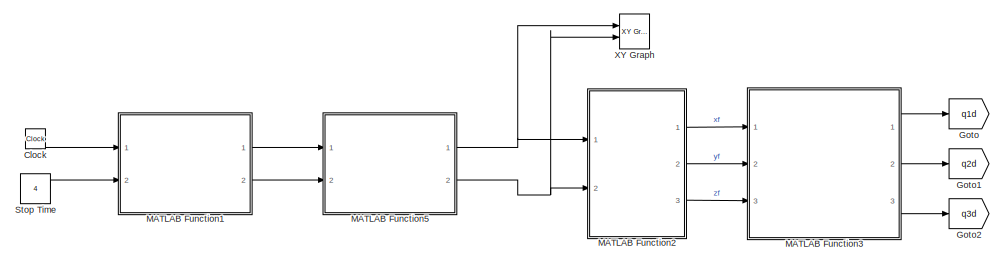
[diagram: root canvas - part 1/2, top left region]
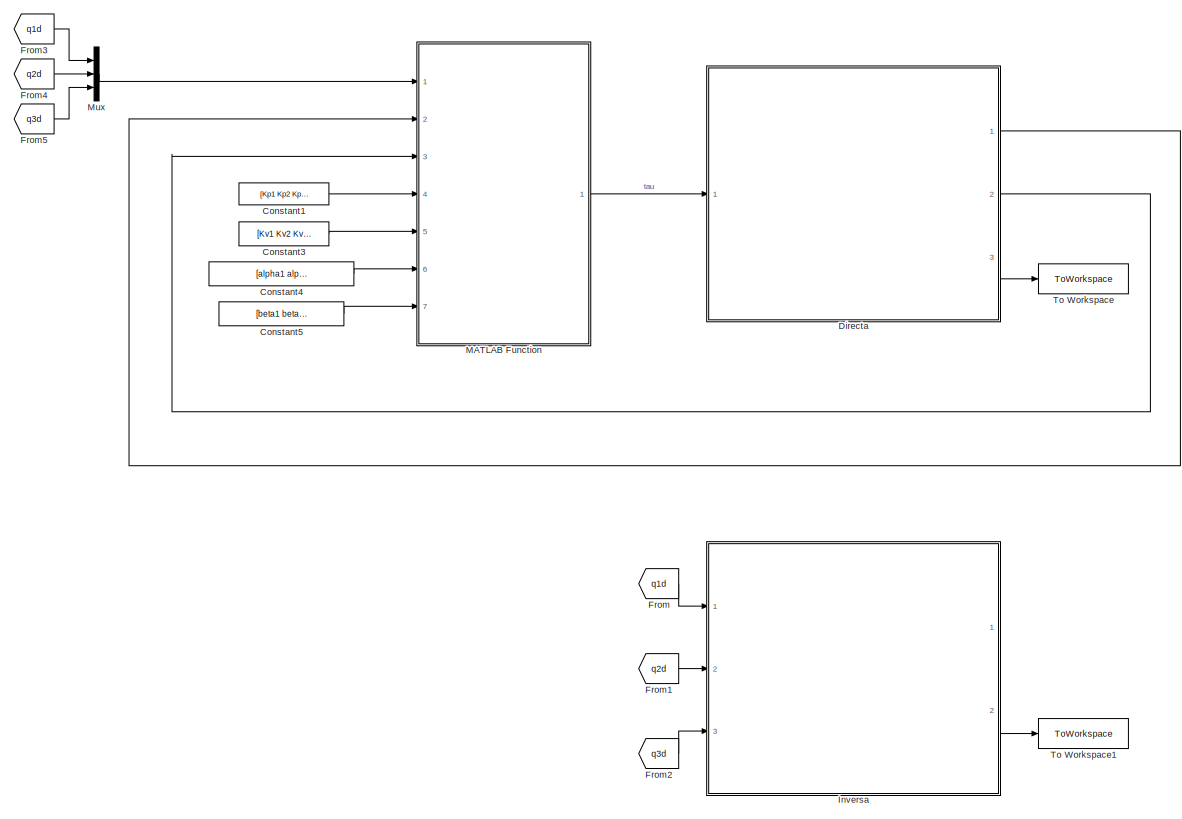
[diagram: root canvas - part 2/2, right side, full height]
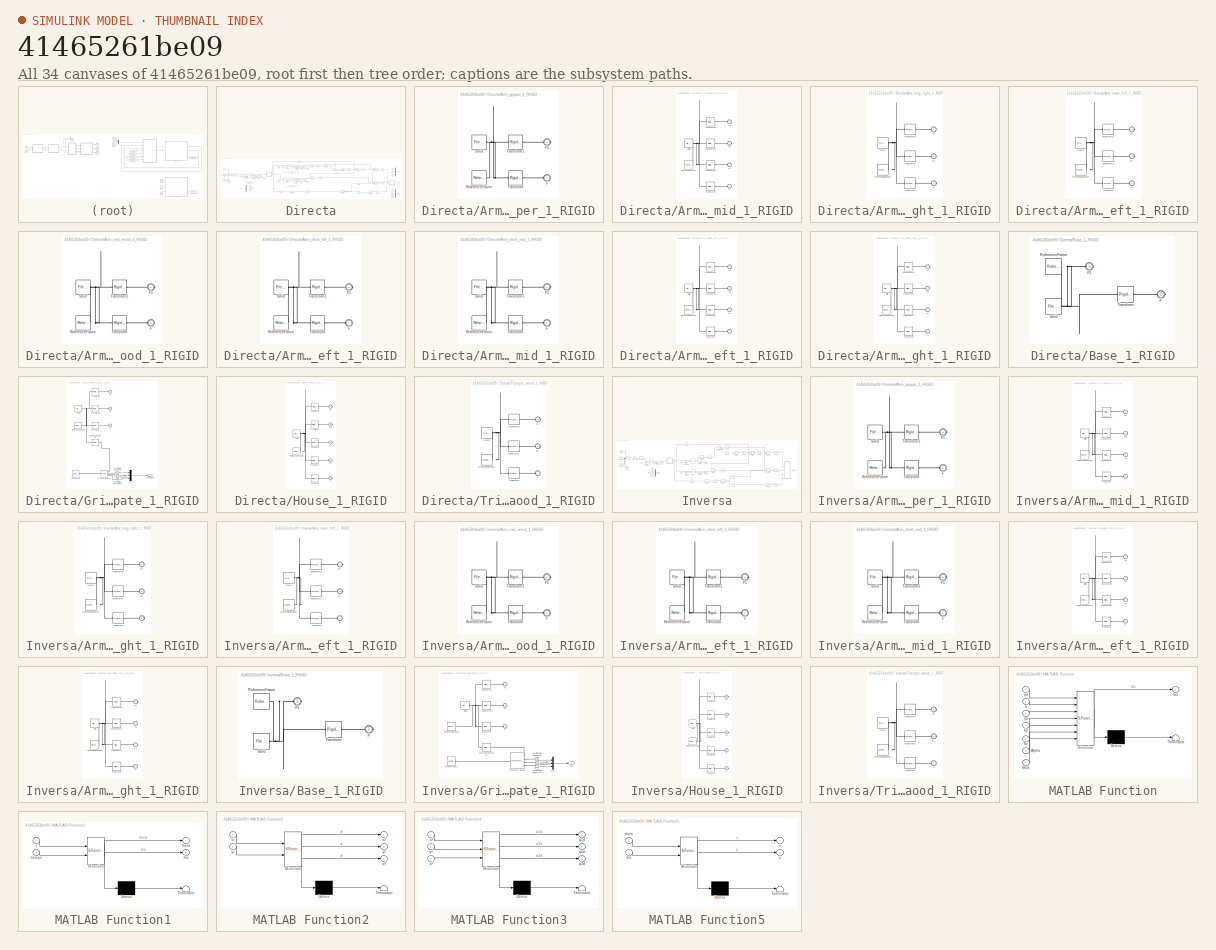
[diagram: thumbnail index - all 34 canvases of the model, root first then tree order]
MODEL slx_41465261be09
KIND model
CONFIG AbsTol = auto
CONFIG EnableMultiTasking = off
CONFIG FixedStep = auto
CONFIG MaxStep = 1e-3
CONFIG MinStep = auto
CONFIG RelTol = 1e-3
CONFIG SampleTimeConstraint = Unconstrained
CONFIG Solver = VariableStepAuto
CONFIG SolverName = VariableStepAuto
CONFIG StartTime = 0.0
CONFIG StopTime = 4
WORKSPACE source: external: MATLAB File  (data not in archive)
BLOCK [Clock] Clock
BLOCK [Constant] Constant1
  Commented = on
  Value = [Kp1 Kp2 Kp3]
BLOCK [Constant] Constant3
  Commented = on
  Value = [Kv1 Kv2 Kv3]
BLOCK [Constant] Constant4
  Commented = on
  Value = [alpha1 alpha2 alpha3]
BLOCK [Constant] Constant5
  Commented = on
  Value = [beta1 beta2 beta3]
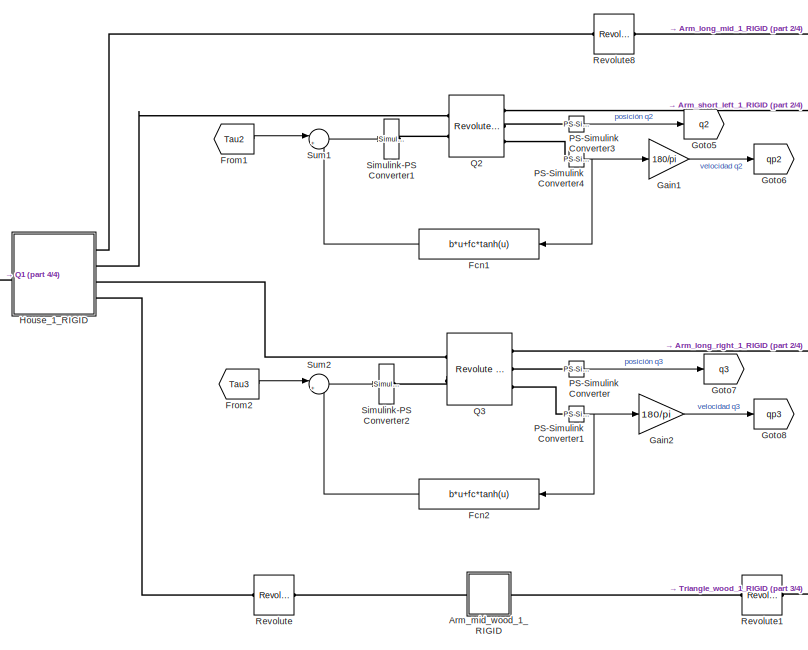
[diagram: Directa - part 1/4, center side, full height]
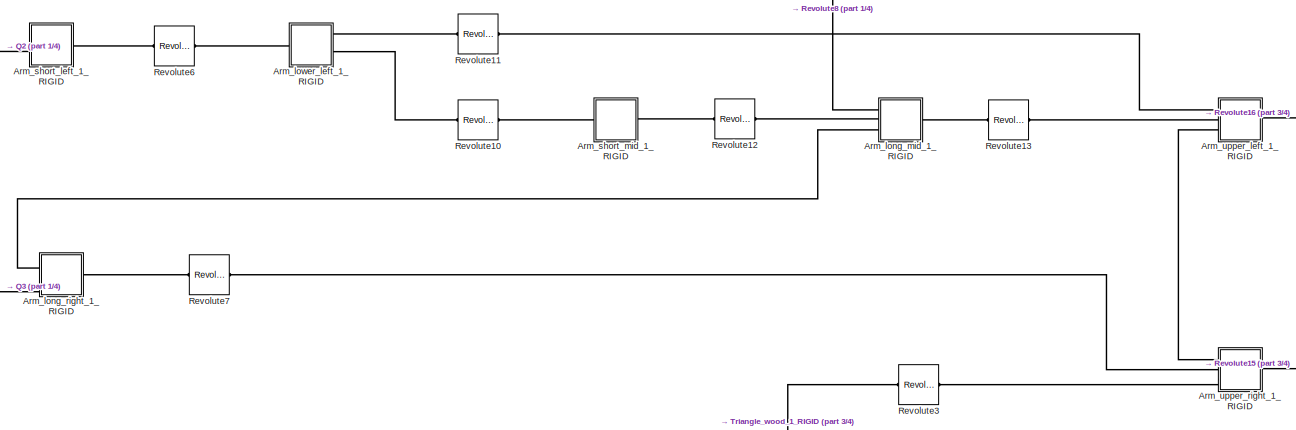
[diagram: Directa - part 2/4, middle right region]
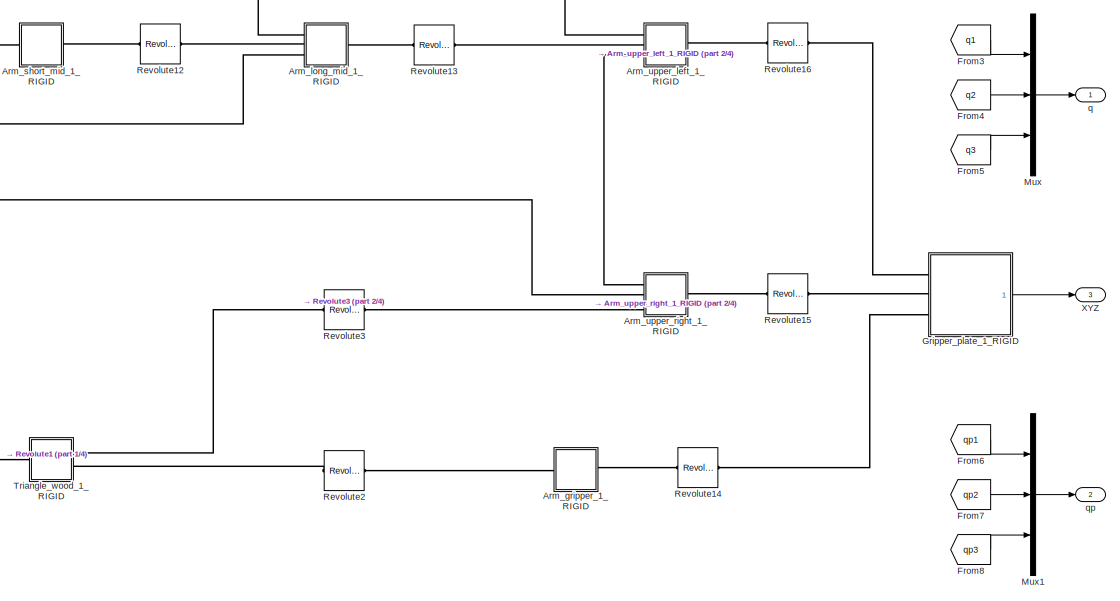
[diagram: Directa - part 3/4, right side, full height]
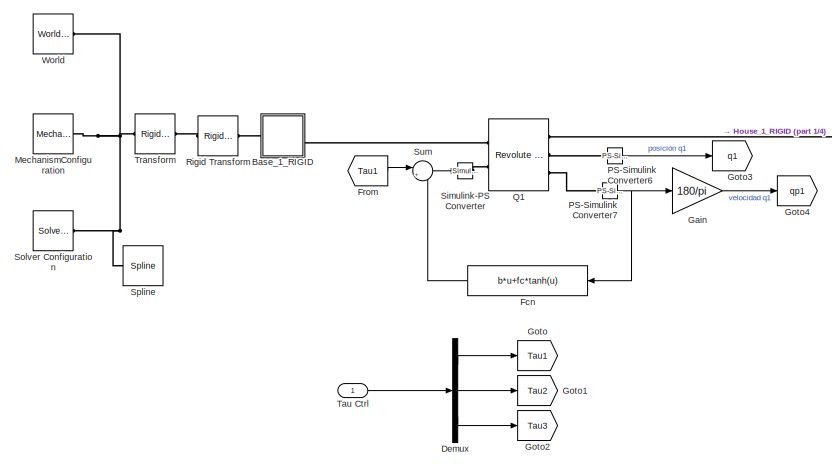
[diagram: Directa - part 4/4, middle left region]
BLOCK [SubSystem] Directa
  Commented = on
  Ports = [1, 3]
  RequestExecContextInheritance = off
BLOCK [SubSystem] Directa/Arm_gripper_1_RIGID
  Ports = [0, 0, 0, 0, 0, 1, 1]
  RequestExecContextInheritance = off
BLOCK [PMIOPort] Directa/Arm_gripper_1_RIGID/F
  Side = Left
BLOCK [PMIOPort] Directa/Arm_gripper_1_RIGID/F1
  Port = 2
  Side = Right
BLOCK [Reference] Directa/Arm_gripper_1_RIGID/ReferenceFrame  REF=sm_lib/Frames and
Transforms/Reference
Frame
  Ports = [0, 0, 0, 0, 0, 0, 1]
  SourceBlock = sm_lib/Frames and\nTransforms/Reference\nFrame
  SourceProductBaseCode = MS
  SourceProductName = Simscape Multibody
  SourceType = Reference\nFrame
BLOCK [Reference] Directa/Arm_gripper_1_RIGID/Solid  REF=sm_lib/Body Elements/File Solid
  Ports = [0, 0, 0, 0, 0, 0, 1]
  SourceBlock = sm_lib/Body Elements/File Solid
  SourceProductBaseCode = MS
  SourceProductName = Simscape Multibody
  SourceType = File Solid
BLOCK [Reference] Directa/Arm_gripper_1_RIGID/Transform  REF=sm_lib/Frames and
Transforms/Rigid
Transform
  Ports = [0, 0, 0, 0, 0, 1, 1]
  SourceBlock = sm_lib/Frames and\nTransforms/Rigid\nTransform
  SourceProductBaseCode = MS
  SourceProductName = Simscape Multibody
  SourceType = Rigid\nTransform
BLOCK [Reference] Directa/Arm_gripper_1_RIGID/Transform1  REF=sm_lib/Frames and
Transforms/Rigid
Transform
  Ports = [0, 0, 0, 0, 0, 1, 1]
  SourceBlock = sm_lib/Frames and\nTransforms/Rigid\nTransform
  SourceProductBaseCode = MS
  SourceProductName = Simscape Multibody
  SourceType = Rigid\nTransform
BLOCK [SubSystem] Directa/Arm_long_mid_1_RIGID
  Ports = [0, 0, 0, 0, 0, 3, 1]
  RequestExecContextInheritance = off
BLOCK [PMIOPort] Directa/Arm_long_mid_1_RIGID/F
  Side = Left
BLOCK [PMIOPort] Directa/Arm_long_mid_1_RIGID/F1
  Port = 2
  Side = Left
BLOCK [PMIOPort] Directa/Arm_long_mid_1_RIGID/F2
  Port = 4
  Side = Right
BLOCK [PMIOPort] Directa/Arm_long_mid_1_RIGID/F3
  Port = 3
  Side = Left
BLOCK [Reference] Directa/Arm_long_mid_1_RIGID/ReferenceFrame  REF=sm_lib/Frames and
Transforms/Reference
Frame
  Ports = [0, 0, 0, 0, 0, 0, 1]
  SourceBlock = sm_lib/Frames and\nTransforms/Reference\nFrame
  SourceProductBaseCode = MS
  SourceProductName = Simscape Multibody
  SourceType = Reference\nFrame
BLOCK [Reference] Directa/Arm_long_mid_1_RIGID/Solid  REF=sm_lib/Body Elements/File Solid
  Ports = [0, 0, 0, 0, 0, 0, 1]
  SourceBlock = sm_lib/Body Elements/File Solid
  SourceProductBaseCode = MS
  SourceProductName = Simscape Multibody
  SourceType = File Solid
BLOCK [Reference] Directa/Arm_long_mid_1_RIGID/Transform  REF=sm_lib/Frames and
Transforms/Rigid
Transform
  Ports = [0, 0, 0, 0, 0, 1, 1]
  SourceBlock = sm_lib/Frames and\nTransforms/Rigid\nTransform
  SourceProductBaseCode = MS
  SourceProductName = Simscape Multibody
  SourceType = Rigid\nTransform
BLOCK [Reference] Directa/Arm_long_mid_1_RIGID/Transform1  REF=sm_lib/Frames and
Transforms/Rigid
Transform
  Ports = [0, 0, 0, 0, 0, 1, 1]
  SourceBlock = sm_lib/Frames and\nTransforms/Rigid\nTransform
  SourceProductBaseCode = MS
  SourceProductName = Simscape Multibody
  SourceType = Rigid\nTransform
BLOCK [Reference] Directa/Arm_long_mid_1_RIGID/Transform2  REF=sm_lib/Frames and
Transforms/Rigid
Transform
  Ports = [0, 0, 0, 0, 0, 1, 1]
  SourceBlock = sm_lib/Frames and\nTransforms/Rigid\nTransform
  SourceProductBaseCode = MS
  SourceProductName = Simscape Multibody
  SourceType = Rigid\nTransform
BLOCK [Reference] Directa/Arm_long_mid_1_RIGID/Transform3  REF=sm_lib/Frames and
Transforms/Rigid
Transform
  Ports = [0, 0, 0, 0, 0, 1, 1]
  SourceBlock = sm_lib/Frames and\nTransforms/Rigid\nTransform
  SourceProductBaseCode = MS
  SourceProductName = Simscape Multibody
  SourceType = Rigid\nTransform
BLOCK [SubSystem] Directa/Arm_long_right_1_RIGID
  Ports = [0, 0, 0, 0, 0, 2, 1]
  RequestExecContextInheritance = off
BLOCK [PMIOPort] Directa/Arm_long_right_1_RIGID/F
  Port = 3
  Side = Right
BLOCK [PMIOPort] Directa/Arm_long_right_1_RIGID/F1
  Port = 2
  Side = Left
BLOCK [PMIOPort] Directa/Arm_long_right_1_RIGID/F2
  Side = Left
BLOCK [Reference] Directa/Arm_long_right_1_RIGID/ReferenceFrame  REF=sm_lib/Frames and
Transforms/Reference
Frame
  Ports = [0, 0, 0, 0, 0, 0, 1]
  SourceBlock = sm_lib/Frames and\nTransforms/Reference\nFrame
  SourceProductBaseCode = MS
  SourceProductName = Simscape Multibody
  SourceType = Reference\nFrame
BLOCK [Reference] Directa/Arm_long_right_1_RIGID/Solid  REF=sm_lib/Body Elements/File Solid
  Ports = [0, 0, 0, 0, 0, 0, 1]
  SourceBlock = sm_lib/Body Elements/File Solid
  SourceProductBaseCode = MS
  SourceProductName = Simscape Multibody
  SourceType = File Solid
BLOCK [Reference] Directa/Arm_long_right_1_RIGID/Transform  REF=sm_lib/Frames and
Transforms/Rigid
Transform
  Ports = [0, 0, 0, 0, 0, 1, 1]
  SourceBlock = sm_lib/Frames and\nTransforms/Rigid\nTransform
  SourceProductBaseCode = MS
  SourceProductName = Simscape Multibody
  SourceType = Rigid\nTransform
BLOCK [Reference] Directa/Arm_long_right_1_RIGID/Transform1  REF=sm_lib/Frames and
Transforms/Rigid
Transform
  Ports = [0, 0, 0, 0, 0, 1, 1]
  SourceBlock = sm_lib/Frames and\nTransforms/Rigid\nTransform
  SourceProductBaseCode = MS
  SourceProductName = Simscape Multibody
  SourceType = Rigid\nTransform
BLOCK [Reference] Directa/Arm_long_right_1_RIGID/Transform2  REF=sm_lib/Frames and
Transforms/Rigid
Transform
  Ports = [0, 0, 0, 0, 0, 1, 1]
  SourceBlock = sm_lib/Frames and\nTransforms/Rigid\nTransform
  SourceProductBaseCode = MS
  SourceProductName = Simscape Multibody
  SourceType = Rigid\nTransform
BLOCK [SubSystem] Directa/Arm_lower_left_1_RIGID
  Ports = [0, 0, 0, 0, 0, 1, 2]
  RequestExecContextInheritance = off
BLOCK [PMIOPort] Directa/Arm_lower_left_1_RIGID/F
  Side = Left
BLOCK [PMIOPort] Directa/Arm_lower_left_1_RIGID/F1
  Port = 3
  Side = Right
BLOCK [PMIOPort] Directa/Arm_lower_left_1_RIGID/F2
  Port = 2
  Side = Right
BLOCK [Reference] Directa/Arm_lower_left_1_RIGID/ReferenceFrame  REF=sm_lib/Frames and
Transforms/Reference
Frame
  Ports = [0, 0, 0, 0, 0, 0, 1]
  SourceBlock = sm_lib/Frames and\nTransforms/Reference\nFrame
  SourceProductBaseCode = MS
  SourceProductName = Simscape Multibody
  SourceType = Reference\nFrame
BLOCK [Reference] Directa/Arm_lower_left_1_RIGID/Solid  REF=sm_lib/Body Elements/File Solid
  Ports = [0, 0, 0, 0, 0, 0, 1]
  SourceBlock = sm_lib/Body Elements/File Solid
  SourceProductBaseCode = MS
  SourceProductName = Simscape Multibody
  SourceType = File Solid
BLOCK [Reference] Directa/Arm_lower_left_1_RIGID/Transform  REF=sm_lib/Frames and
Transforms/Rigid
Transform
  Ports = [0, 0, 0, 0, 0, 1, 1]
  SourceBlock = sm_lib/Frames and\nTransforms/Rigid\nTransform
  SourceProductBaseCode = MS
  SourceProductName = Simscape Multibody
  SourceType = Rigid\nTransform
BLOCK [Reference] Directa/Arm_lower_left_1_RIGID/Transform1  REF=sm_lib/Frames and
Transforms/Rigid
Transform
  Ports = [0, 0, 0, 0, 0, 1, 1]
  SourceBlock = sm_lib/Frames and\nTransforms/Rigid\nTransform
  SourceProductBaseCode = MS
  SourceProductName = Simscape Multibody
  SourceType = Rigid\nTransform
BLOCK [Reference] Directa/Arm_lower_left_1_RIGID/Transform2  REF=sm_lib/Frames and
Transforms/Rigid
Transform
  Ports = [0, 0, 0, 0, 0, 1, 1]
  SourceBlock = sm_lib/Frames and\nTransforms/Rigid\nTransform
  SourceProductBaseCode = MS
  SourceProductName = Simscape Multibody
  SourceType = Rigid\nTransform
BLOCK [SubSystem] Directa/Arm_mid_wood_1_RIGID
  Ports = [0, 0, 0, 0, 0, 1, 1]
  RequestExecContextInheritance = off
BLOCK [PMIOPort] Directa/Arm_mid_wood_1_RIGID/F
  Side = Left
BLOCK [PMIOPort] Directa/Arm_mid_wood_1_RIGID/F1
  Port = 2
  Side = Right
BLOCK [Reference] Directa/Arm_mid_wood_1_RIGID/ReferenceFrame  REF=sm_lib/Frames and
Transforms/Reference
Frame
  Ports = [0, 0, 0, 0, 0, 0, 1]
  SourceBlock = sm_lib/Frames and\nTransforms/Reference\nFrame
  SourceProductBaseCode = MS
  SourceProductName = Simscape Multibody
  SourceType = Reference\nFrame
BLOCK [Reference] Directa/Arm_mid_wood_1_RIGID/Solid  REF=sm_lib/Body Elements/File Solid
  Ports = [0, 0, 0, 0, 0, 0, 1]
  SourceBlock = sm_lib/Body Elements/File Solid
  SourceProductBaseCode = MS
  SourceProductName = Simscape Multibody
  SourceType = File Solid
BLOCK [Reference] Directa/Arm_mid_wood_1_RIGID/Transform  REF=sm_lib/Frames and
Transforms/Rigid
Transform
  Ports = [0, 0, 0, 0, 0, 1, 1]
  SourceBlock = sm_lib/Frames and\nTransforms/Rigid\nTransform
  SourceProductBaseCode = MS
  SourceProductName = Simscape Multibody
  SourceType = Rigid\nTransform
BLOCK [Reference] Directa/Arm_mid_wood_1_RIGID/Transform1  REF=sm_lib/Frames and
Transforms/Rigid
Transform
  Ports = [0, 0, 0, 0, 0, 1, 1]
  SourceBlock = sm_lib/Frames and\nTransforms/Rigid\nTransform
  SourceProductBaseCode = MS
  SourceProductName = Simscape Multibody
  SourceType = Rigid\nTransform
BLOCK [SubSystem] Directa/Arm_short_left_1_RIGID
  Ports = [0, 0, 0, 0, 0, 1, 1]
  RequestExecContextInheritance = off
BLOCK [PMIOPort] Directa/Arm_short_left_1_RIGID/F
  Side = Left
BLOCK [PMIOPort] Directa/Arm_short_left_1_RIGID/F1
  Port = 2
  Side = Right
BLOCK [Reference] Directa/Arm_short_left_1_RIGID/ReferenceFrame  REF=sm_lib/Frames and
Transforms/Reference
Frame
  Ports = [0, 0, 0, 0, 0, 0, 1]
  SourceBlock = sm_lib/Frames and\nTransforms/Reference\nFrame
  SourceProductBaseCode = MS
  SourceProductName = Simscape Multibody
  SourceType = Reference\nFrame
BLOCK [Reference] Directa/Arm_short_left_1_RIGID/Solid  REF=sm_lib/Body Elements/File Solid
  Ports = [0, 0, 0, 0, 0, 0, 1]
  SourceBlock = sm_lib/Body Elements/File Solid
  SourceProductBaseCode = MS
  SourceProductName = Simscape Multibody
  SourceType = File Solid
BLOCK [Reference] Directa/Arm_short_left_1_RIGID/Transform  REF=sm_lib/Frames and
Transforms/Rigid
Transform
  Ports = [0, 0, 0, 0, 0, 1, 1]
  SourceBlock = sm_lib/Frames and\nTransforms/Rigid\nTransform
  SourceProductBaseCode = MS
  SourceProductName = Simscape Multibody
  SourceType = Rigid\nTransform
BLOCK [Reference] Directa/Arm_short_left_1_RIGID/Transform1  REF=sm_lib/Frames and
Transforms/Rigid
Transform
  Ports = [0, 0, 0, 0, 0, 1, 1]
  SourceBlock = sm_lib/Frames and\nTransforms/Rigid\nTransform
  SourceProductBaseCode = MS
  SourceProductName = Simscape Multibody
  SourceType = Rigid\nTransform
BLOCK [SubSystem] Directa/Arm_short_mid_1_RIGID
  Ports = [0, 0, 0, 0, 0, 1, 1]
  RequestExecContextInheritance = off
BLOCK [PMIOPort] Directa/Arm_short_mid_1_RIGID/F
  Side = Left
BLOCK [PMIOPort] Directa/Arm_short_mid_1_RIGID/F1
  Port = 2
  Side = Right
BLOCK [Reference] Directa/Arm_short_mid_1_RIGID/ReferenceFrame  REF=sm_lib/Frames and
Transforms/Reference
Frame
  Ports = [0, 0, 0, 0, 0, 0, 1]
  SourceBlock = sm_lib/Frames and\nTransforms/Reference\nFrame
  SourceProductBaseCode = MS
  SourceProductName = Simscape Multibody
  SourceType = Reference\nFrame
BLOCK [Reference] Directa/Arm_short_mid_1_RIGID/Solid  REF=sm_lib/Body Elements/File Solid
  Ports = [0, 0, 0, 0, 0, 0, 1]
  SourceBlock = sm_lib/Body Elements/File Solid
  SourceProductBaseCode = MS
  SourceProductName = Simscape Multibody
  SourceType = File Solid
BLOCK [Reference] Directa/Arm_short_mid_1_RIGID/Transform  REF=sm_lib/Frames and
Transforms/Rigid
Transform
  Ports = [0, 0, 0, 0, 0, 1, 1]
  SourceBlock = sm_lib/Frames and\nTransforms/Rigid\nTransform
  SourceProductBaseCode = MS
  SourceProductName = Simscape Multibody
  SourceType = Rigid\nTransform
BLOCK [Reference] Directa/Arm_short_mid_1_RIGID/Transform1  REF=sm_lib/Frames and
Transforms/Rigid
Transform
  Ports = [0, 0, 0, 0, 0, 1, 1]
  SourceBlock = sm_lib/Frames and\nTransforms/Rigid\nTransform
  SourceProductBaseCode = MS
  SourceProductName = Simscape Multibody
  SourceType = Rigid\nTransform
BLOCK [SubSystem] Directa/Arm_upper_left_1_RIGID
  Ports = [0, 0, 0, 0, 0, 3, 1]
  RequestExecContextInheritance = off
BLOCK [PMIOPort] Directa/Arm_upper_left_1_RIGID/F
  Port = 3
  Side = Left
BLOCK [PMIOPort] Directa/Arm_upper_left_1_RIGID/F1
  Side = Left
BLOCK [PMIOPort] Directa/Arm_upper_left_1_RIGID/F2
  Port = 2
  Side = Left
BLOCK [PMIOPort] Directa/Arm_upper_left_1_RIGID/F3
  Port = 4
  Side = Right
BLOCK [Reference] Directa/Arm_upper_left_1_RIGID/ReferenceFrame  REF=sm_lib/Frames and
Transforms/Reference
Frame
  Ports = [0, 0, 0, 0, 0, 0, 1]
  SourceBlock = sm_lib/Frames and\nTransforms/Reference\nFrame
  SourceProductBaseCode = MS
  SourceProductName = Simscape Multibody
  SourceType = Reference\nFrame
BLOCK [Reference] Directa/Arm_upper_left_1_RIGID/Solid  REF=sm_lib/Body Elements/File Solid
  Ports = [0, 0, 0, 0, 0, 0, 1]
  SourceBlock = sm_lib/Body Elements/File Solid
  SourceProductBaseCode = MS
  SourceProductName = Simscape Multibody
  SourceType = File Solid
BLOCK [Reference] Directa/Arm_upper_left_1_RIGID/Transform  REF=sm_lib/Frames and
Transforms/Rigid
Transform
  Ports = [0, 0, 0, 0, 0, 1, 1]
  SourceBlock = sm_lib/Frames and\nTransforms/Rigid\nTransform
  SourceProductBaseCode = MS
  SourceProductName = Simscape Multibody
  SourceType = Rigid\nTransform
BLOCK [Reference] Directa/Arm_upper_left_1_RIGID/Transform1  REF=sm_lib/Frames and
Transforms/Rigid
Transform
  Ports = [0, 0, 0, 0, 0, 1, 1]
  SourceBlock = sm_lib/Frames and\nTransforms/Rigid\nTransform
  SourceProductBaseCode = MS
  SourceProductName = Simscape Multibody
  SourceType = Rigid\nTransform
BLOCK [Reference] Directa/Arm_upper_left_1_RIGID/Transform2  REF=sm_lib/Frames and
Transforms/Rigid
Transform
  Ports = [0, 0, 0, 0, 0, 1, 1]
  SourceBlock = sm_lib/Frames and\nTransforms/Rigid\nTransform
  SourceProductBaseCode = MS
  SourceProductName = Simscape Multibody
  SourceType = Rigid\nTransform
BLOCK [Reference] Directa/Arm_upper_left_1_RIGID/Transform3  REF=sm_lib/Frames and
Transforms/Rigid
Transform
  Ports = [0, 0, 0, 0, 0, 1, 1]
  SourceBlock = sm_lib/Frames and\nTransforms/Rigid\nTransform
  SourceProductBaseCode = MS
  SourceProductName = Simscape Multibody
  SourceType = Rigid\nTransform
BLOCK [SubSystem] Directa/Arm_upper_right_1_RIGID
  Ports = [0, 0, 0, 0, 0, 3, 1]
  RequestExecContextInheritance = off
BLOCK [PMIOPort] Directa/Arm_upper_right_1_RIGID/F
  Port = 3
  Side = Left
BLOCK [PMIOPort] Directa/Arm_upper_right_1_RIGID/F1
  Side = Left
BLOCK [PMIOPort] Directa/Arm_upper_right_1_RIGID/F2
  Port = 2
  Side = Left
BLOCK [PMIOPort] Directa/Arm_upper_right_1_RIGID/F3
  Port = 4
  Side = Right
BLOCK [Reference] Directa/Arm_upper_right_1_RIGID/ReferenceFrame  REF=sm_lib/Frames and
Transforms/Reference
Frame
  Ports = [0, 0, 0, 0, 0, 0, 1]
  SourceBlock = sm_lib/Frames and\nTransforms/Reference\nFrame
  SourceProductBaseCode = MS
  SourceProductName = Simscape Multibody
  SourceType = Reference\nFrame
BLOCK [Reference] Directa/Arm_upper_right_1_RIGID/Solid  REF=sm_lib/Body Elements/File Solid
  Ports = [0, 0, 0, 0, 0, 0, 1]
  SourceBlock = sm_lib/Body Elements/File Solid
  SourceProductBaseCode = MS
  SourceProductName = Simscape Multibody
  SourceType = File Solid
BLOCK [Reference] Directa/Arm_upper_right_1_RIGID/Transform  REF=sm_lib/Frames and
Transforms/Rigid
Transform
  Ports = [0, 0, 0, 0, 0, 1, 1]
  SourceBlock = sm_lib/Frames and\nTransforms/Rigid\nTransform
  SourceProductBaseCode = MS
  SourceProductName = Simscape Multibody
  SourceType = Rigid\nTransform
BLOCK [Reference] Directa/Arm_upper_right_1_RIGID/Transform1  REF=sm_lib/Frames and
Transforms/Rigid
Transform
  Ports = [0, 0, 0, 0, 0, 1, 1]
  SourceBlock = sm_lib/Frames and\nTransforms/Rigid\nTransform
  SourceProductBaseCode = MS
  SourceProductName = Simscape Multibody
  SourceType = Rigid\nTransform
BLOCK [Reference] Directa/Arm_upper_right_1_RIGID/Transform2  REF=sm_lib/Frames and
Transforms/Rigid
Transform
  Ports = [0, 0, 0, 0, 0, 1, 1]
  SourceBlock = sm_lib/Frames and\nTransforms/Rigid\nTransform
  SourceProductBaseCode = MS
  SourceProductName = Simscape Multibody
  SourceType = Rigid\nTransform
BLOCK [Reference] Directa/Arm_upper_right_1_RIGID/Transform3  REF=sm_lib/Frames and
Transforms/Rigid
Transform
  Ports = [0, 0, 0, 0, 0, 1, 1]
  SourceBlock = sm_lib/Frames and\nTransforms/Rigid\nTransform
  SourceProductBaseCode = MS
  SourceProductName = Simscape Multibody
  SourceType = Rigid\nTransform
BLOCK [SubSystem] Directa/Base_1_RIGID
  Ports = [0, 0, 0, 0, 0, 1, 1]
  RequestExecContextInheritance = off
BLOCK [PMIOPort] Directa/Base_1_RIGID/F
  Port = 2
  Side = Right
BLOCK [PMIOPort] Directa/Base_1_RIGID/F1
  Side = Left
BLOCK [Reference] Directa/Base_1_RIGID/ReferenceFrame  REF=sm_lib/Frames and
Transforms/Reference
Frame
  Ports = [0, 0, 0, 0, 0, 0, 1]
  SourceBlock = sm_lib/Frames and\nTransforms/Reference\nFrame
  SourceProductBaseCode = MS
  SourceProductName = Simscape Multibody
  SourceType = Reference\nFrame
BLOCK [Reference] Directa/Base_1_RIGID/Solid  REF=sm_lib/Body Elements/File Solid
  Ports = [0, 0, 0, 0, 0, 0, 1]
  SourceBlock = sm_lib/Body Elements/File Solid
  SourceProductBaseCode = MS
  SourceProductName = Simscape Multibody
  SourceType = File Solid
BLOCK [Reference] Directa/Base_1_RIGID/Transform  REF=sm_lib/Frames and
Transforms/Rigid
Transform
  Ports = [0, 0, 0, 0, 0, 1, 1]
  SourceBlock = sm_lib/Frames and\nTransforms/Rigid\nTransform
  SourceProductBaseCode = MS
  SourceProductName = Simscape Multibody
  SourceType = Rigid\nTransform
BLOCK [Demux] Directa/Demux
  DisplayOption = bar
  Outputs = 3
  Ports = [1, 3]
BLOCK [Fcn] Directa/Fcn
  Expr = b*u+fc*tanh(u)
BLOCK [Fcn] Directa/Fcn1
  Expr = b*u+fc*tanh(u)
BLOCK [Fcn] Directa/Fcn2
  Expr = b*u+fc*tanh(u)
BLOCK [From] Directa/From
  GotoTag = Tau1
BLOCK [From] Directa/From1
  GotoTag = Tau2
BLOCK [From] Directa/From2
  GotoTag = Tau3
BLOCK [From] Directa/From3
  GotoTag = q1
BLOCK [From] Directa/From4
  GotoTag = q2
BLOCK [From] Directa/From5
  GotoTag = q3
BLOCK [From] Directa/From6
  GotoTag = qp1
BLOCK [From] Directa/From7
  GotoTag = qp2
BLOCK [From] Directa/From8
  GotoTag = qp3
BLOCK [Gain] Directa/Gain
  Gain = 180/pi
  OutDataTypeStr = Inherit: Inherit via internal rule
  ParamDataTypeStr = Inherit: Inherit via internal rule
  SaturateOnIntegerOverflow = off
BLOCK [Gain] Directa/Gain1
  Gain = 180/pi
  OutDataTypeStr = Inherit: Inherit via internal rule
  ParamDataTypeStr = Inherit: Inherit via internal rule
  SaturateOnIntegerOverflow = off
BLOCK [Gain] Directa/Gain2
  Gain = 180/pi
  OutDataTypeStr = Inherit: Inherit via internal rule
  ParamDataTypeStr = Inherit: Inherit via internal rule
  SaturateOnIntegerOverflow = off
BLOCK [Goto] Directa/Goto
  GotoTag = Tau1
BLOCK [Goto] Directa/Goto1
  GotoTag = Tau2
BLOCK [Goto] Directa/Goto2
  GotoTag = Tau3
BLOCK [Goto] Directa/Goto3
  GotoTag = q1
BLOCK [Goto] Directa/Goto4
  GotoTag = qp1
BLOCK [Goto] Directa/Goto5
  GotoTag = q2
BLOCK [Goto] Directa/Goto6
  GotoTag = qp2
BLOCK [Goto] Directa/Goto7
  GotoTag = q3
BLOCK [Goto] Directa/Goto8
  GotoTag = qp3
BLOCK [SubSystem] Directa/Gripper_plate_1_RIGID
  Ports = [0, 1, 0, 0, 0, 3]
  RequestExecContextInheritance = off
BLOCK [PMIOPort] Directa/Gripper_plate_1_RIGID/F
  Port = 3
  Side = Left
BLOCK [PMIOPort] Directa/Gripper_plate_1_RIGID/F1
  Port = 2
  Side = Left
BLOCK [PMIOPort] Directa/Gripper_plate_1_RIGID/F2
  Side = Left
BLOCK [Mux] Directa/Gripper_plate_1_RIGID/Mux
  DisplayOption = bar
  Inputs = 3
  Ports = [3, 1]
BLOCK [Reference] Directa/Gripper_plate_1_RIGID/PS-Simulink Converter  REF=nesl_utility/PS-Simulink
Converter
  Ports = [0, 1, 0, 0, 0, 1]
  SourceBlock = nesl_utility/PS-Simulink\nConverter
  SourceProductBaseCode = SS
  SourceProductName = Simscape
  SourceType = PS-Simulink\nConverter
BLOCK [Reference] Directa/Gripper_plate_1_RIGID/PS-Simulink Converter1  REF=nesl_utility/PS-Simulink
Converter
  Ports = [0, 1, 0, 0, 0, 1]
  SourceBlock = nesl_utility/PS-Simulink\nConverter
  SourceProductBaseCode = SS
  SourceProductName = Simscape
  SourceType = PS-Simulink\nConverter
BLOCK [Reference] Directa/Gripper_plate_1_RIGID/PS-Simulink Converter2  REF=nesl_utility/PS-Simulink
Converter
  Ports = [0, 1, 0, 0, 0, 1]
  SourceBlock = nesl_utility/PS-Simulink\nConverter
  SourceProductBaseCode = SS
  SourceProductName = Simscape
  SourceType = PS-Simulink\nConverter
BLOCK [Reference] Directa/Gripper_plate_1_RIGID/ReferenceFrame  REF=sm_lib/Frames and
Transforms/Reference
Frame
  Ports = [0, 0, 0, 0, 0, 0, 1]
  SourceBlock = sm_lib/Frames and\nTransforms/Reference\nFrame
  SourceProductBaseCode = MS
  SourceProductName = Simscape Multibody
  SourceType = Reference\nFrame
BLOCK [Reference] Directa/Gripper_plate_1_RIGID/SMLINK_CS1Xform  REF=sm_lib/Frames and
Transforms/Rigid
Transform
  Ports = [0, 0, 0, 0, 0, 1, 1]
  SourceBlock = sm_lib/Frames and\nTransforms/Rigid\nTransform
  SourceProductBaseCode = MS
  SourceProductName = Simscape Multibody
  SourceType = Rigid\nTransform
BLOCK [Reference] Directa/Gripper_plate_1_RIGID/Solid  REF=sm_lib/Body Elements/File Solid
  Ports = [0, 0, 0, 0, 0, 0, 1]
  SourceBlock = sm_lib/Body Elements/File Solid
  SourceProductBaseCode = MS
  SourceProductName = Simscape Multibody
  SourceType = File Solid
BLOCK [Reference] Directa/Gripper_plate_1_RIGID/Transform  REF=sm_lib/Frames and
Transforms/Rigid
Transform
  Ports = [0, 0, 0, 0, 0, 1, 1]
  SourceBlock = sm_lib/Frames and\nTransforms/Rigid\nTransform
  SourceProductBaseCode = MS
  SourceProductName = Simscape Multibody
  SourceType = Rigid\nTransform
BLOCK [Reference] Directa/Gripper_plate_1_RIGID/Transform Sensor  REF=sm_lib/Frames and
Transforms/Transform
Sensor
  Ports = [0, 0, 0, 0, 0, 1, 4]
  SourceBlock = sm_lib/Frames and\nTransforms/Transform\nSensor
  SourceProductBaseCode = MS
  SourceProductName = Simscape Multibody
  SourceType = Transform\nSensor
BLOCK [Reference] Directa/Gripper_plate_1_RIGID/Transform1  REF=sm_lib/Frames and
Transforms/Rigid
Transform
  Ports = [0, 0, 0, 0, 0, 1, 1]
  SourceBlock = sm_lib/Frames and\nTransforms/Rigid\nTransform
  SourceProductBaseCode = MS
  SourceProductName = Simscape Multibody
  SourceType = Rigid\nTransform
BLOCK [Reference] Directa/Gripper_plate_1_RIGID/Transform2  REF=sm_lib/Frames and
Transforms/Rigid
Transform
  Ports = [0, 0, 0, 0, 0, 1, 1]
  SourceBlock = sm_lib/Frames and\nTransforms/Rigid\nTransform
  SourceProductBaseCode = MS
  SourceProductName = Simscape Multibody
  SourceType = Rigid\nTransform
BLOCK [Reference] Directa/Gripper_plate_1_RIGID/World Frame  REF=sm_lib/Frames and
Transforms/World Frame
  Ports = [0, 0, 0, 0, 0, 0, 1]
  SourceBlock = sm_lib/Frames and\nTransforms/World Frame
  SourceProductBaseCode = MS
  SourceProductName = Simscape Multibody
  SourceType = World Frame
BLOCK [Outport] Directa/Gripper_plate_1_RIGID/XYZdirecta
  IconDisplay = Port number
BLOCK [SubSystem] Directa/House_1_RIGID
  Ports = [0, 0, 0, 0, 0, 1, 4]
  RequestExecContextInheritance = off
BLOCK [PMIOPort] Directa/House_1_RIGID/F
  Port = 5
  Side = Right
BLOCK [PMIOPort] Directa/House_1_RIGID/F1
  Side = Left
BLOCK [PMIOPort] Directa/House_1_RIGID/F2
  Port = 3
  Side = Right
BLOCK [PMIOPort] Directa/House_1_RIGID/F3
  Port = 2
  Side = Right
BLOCK [PMIOPort] Directa/House_1_RIGID/F4
  Port = 4
  Side = Right
BLOCK [Reference] Directa/House_1_RIGID/ReferenceFrame  REF=sm_lib/Frames and
Transforms/Reference
Frame
  Ports = [0, 0, 0, 0, 0, 0, 1]
  SourceBlock = sm_lib/Frames and\nTransforms/Reference\nFrame
  SourceProductBaseCode = MS
  SourceProductName = Simscape Multibody
  SourceType = Reference\nFrame
BLOCK [Reference] Directa/House_1_RIGID/Solid  REF=sm_lib/Body Elements/File Solid
  Ports = [0, 0, 0, 0, 0, 0, 1]
  SourceBlock = sm_lib/Body Elements/File Solid
  SourceProductBaseCode = MS
  SourceProductName = Simscape Multibody
  SourceType = File Solid
BLOCK [Reference] Directa/House_1_RIGID/Transform  REF=sm_lib/Frames and
Transforms/Rigid
Transform
  Ports = [0, 0, 0, 0, 0, 1, 1]
  SourceBlock = sm_lib/Frames and\nTransforms/Rigid\nTransform
  SourceProductBaseCode = MS
  SourceProductName = Simscape Multibody
  SourceType = Rigid\nTransform
BLOCK [Reference] Directa/House_1_RIGID/Transform1  REF=sm_lib/Frames and
Transforms/Rigid
Transform
  Ports = [0, 0, 0, 0, 0, 1, 1]
  SourceBlock = sm_lib/Frames and\nTransforms/Rigid\nTransform
  SourceProductBaseCode = MS
  SourceProductName = Simscape Multibody
  SourceType = Rigid\nTransform
BLOCK [Reference] Directa/House_1_RIGID/Transform2  REF=sm_lib/Frames and
Transforms/Rigid
Transform
  Ports = [0, 0, 0, 0, 0, 1, 1]
  SourceBlock = sm_lib/Frames and\nTransforms/Rigid\nTransform
  SourceProductBaseCode = MS
  SourceProductName = Simscape Multibody
  SourceType = Rigid\nTransform
BLOCK [Reference] Directa/House_1_RIGID/Transform3  REF=sm_lib/Frames and
Transforms/Rigid
Transform
  Ports = [0, 0, 0, 0, 0, 1, 1]
  SourceBlock = sm_lib/Frames and\nTransforms/Rigid\nTransform
  SourceProductBaseCode = MS
  SourceProductName = Simscape Multibody
  SourceType = Rigid\nTransform
BLOCK [Reference] Directa/House_1_RIGID/Transform4  REF=sm_lib/Frames and
Transforms/Rigid
Transform
  Ports = [0, 0, 0, 0, 0, 1, 1]
  SourceBlock = sm_lib/Frames and\nTransforms/Rigid\nTransform
  SourceProductBaseCode = MS
  SourceProductName = Simscape Multibody
  SourceType = Rigid\nTransform
BLOCK [Reference] Directa/MechanismConfiguration  REF=sm_lib/Utilities/Mechanism
Configuration
  Ports = [0, 0, 0, 0, 0, 0, 1]
  SourceBlock = sm_lib/Utilities/Mechanism\nConfiguration
  SourceProductBaseCode = MS
  SourceProductName = Simscape Multibody
  SourceType = Mechanism\nConfiguration
BLOCK [Mux] Directa/Mux
  DisplayOption = bar
  Inputs = 3
  Ports = [3, 1]
BLOCK [Mux] Directa/Mux1
  DisplayOption = bar
  Inputs = 3
  Ports = [3, 1]
BLOCK [Reference] Directa/PS-Simulink Converter  REF=nesl_utility/PS-Simulink
Converter
  Ports = [0, 1, 0, 0, 0, 1]
  SourceBlock = nesl_utility/PS-Simulink\nConverter
  SourceProductBaseCode = SS
  SourceProductName = Simscape
  SourceType = PS-Simulink\nConverter
BLOCK [Reference] Directa/PS-Simulink Converter1  REF=nesl_utility/PS-Simulink
Converter
  Ports = [0, 1, 0, 0, 0, 1]
  SourceBlock = nesl_utility/PS-Simulink\nConverter
  SourceProductBaseCode = SS
  SourceProductName = Simscape
  SourceType = PS-Simulink\nConverter
BLOCK [Reference] Directa/PS-Simulink Converter3  REF=nesl_utility/PS-Simulink
Converter
  Ports = [0, 1, 0, 0, 0, 1]
  SourceBlock = nesl_utility/PS-Simulink\nConverter
  SourceProductBaseCode = SS
  SourceProductName = Simscape
  SourceType = PS-Simulink\nConverter
BLOCK [Reference] Directa/PS-Simulink Converter4  REF=nesl_utility/PS-Simulink
Converter
  Ports = [0, 1, 0, 0, 0, 1]
  SourceBlock = nesl_utility/PS-Simulink\nConverter
  SourceProductBaseCode = SS
  SourceProductName = Simscape
  SourceType = PS-Simulink\nConverter
BLOCK [Reference] Directa/PS-Simulink Converter6  REF=nesl_utility/PS-Simulink
Converter
  Ports = [0, 1, 0, 0, 0, 1]
  SourceBlock = nesl_utility/PS-Simulink\nConverter
  SourceProductBaseCode = SS
  SourceProductName = Simscape
  SourceType = PS-Simulink\nConverter
BLOCK [Reference] Directa/PS-Simulink Converter7  REF=nesl_utility/PS-Simulink
Converter
  Ports = [0, 1, 0, 0, 0, 1]
  SourceBlock = nesl_utility/PS-Simulink\nConverter
  SourceProductBaseCode = SS
  SourceProductName = Simscape
  SourceType = PS-Simulink\nConverter
BLOCK [Reference] Directa/Q1  REF=sm_lib/Joints/Revolute Joint
  Ports = [0, 0, 0, 0, 0, 2, 3]
  SourceBlock = sm_lib/Joints/Revolute Joint
  SourceProductBaseCode = MS
  SourceProductName = Simscape Multibody
  SourceType = Revolute Joint
BLOCK [Reference] Directa/Q2   REF=sm_lib/Joints/Revolute Joint
  Ports = [0, 0, 0, 0, 0, 2, 3]
  SourceBlock = sm_lib/Joints/Revolute Joint
  SourceProductBaseCode = MS
  SourceProductName = Simscape Multibody
  SourceType = Revolute Joint
BLOCK [Reference] Directa/Q3  REF=sm_lib/Joints/Revolute Joint
  Ports = [0, 0, 0, 0, 0, 2, 3]
  SourceBlock = sm_lib/Joints/Revolute Joint
  SourceProductBaseCode = MS
  SourceProductName = Simscape Multibody
  SourceType = Revolute Joint
BLOCK [Reference] Directa/Revolute  REF=sm_lib/Joints/Revolute Joint
  Ports = [0, 0, 0, 0, 0, 1, 1]
  SourceBlock = sm_lib/Joints/Revolute Joint
  SourceProductBaseCode = MS
  SourceProductName = Simscape Multibody
  SourceType = Revolute Joint
BLOCK [Reference] Directa/Revolute1  REF=sm_lib/Joints/Revolute Joint
  Ports = [0, 0, 0, 0, 0, 1, 1]
  SourceBlock = sm_lib/Joints/Revolute Joint
  SourceProductBaseCode = MS
  SourceProductName = Simscape Multibody
  SourceType = Revolute Joint
BLOCK [Reference] Directa/Revolute10  REF=sm_lib/Joints/Revolute Joint
  Ports = [0, 0, 0, 0, 0, 1, 1]
  SourceBlock = sm_lib/Joints/Revolute Joint
  SourceProductBaseCode = MS
  SourceProductName = Simscape Multibody
  SourceType = Revolute Joint
BLOCK [Reference] Directa/Revolute11  REF=sm_lib/Joints/Revolute Joint
  Ports = [0, 0, 0, 0, 0, 1, 1]
  SourceBlock = sm_lib/Joints/Revolute Joint
  SourceProductBaseCode = MS
  SourceProductName = Simscape Multibody
  SourceType = Revolute Joint
BLOCK [Reference] Directa/Revolute12  REF=sm_lib/Joints/Revolute Joint
  Ports = [0, 0, 0, 0, 0, 1, 1]
  SourceBlock = sm_lib/Joints/Revolute Joint
  SourceProductBaseCode = MS
  SourceProductName = Simscape Multibody
  SourceType = Revolute Joint
BLOCK [Reference] Directa/Revolute13  REF=sm_lib/Joints/Revolute Joint
  Ports = [0, 0, 0, 0, 0, 1, 1]
  SourceBlock = sm_lib/Joints/Revolute Joint
  SourceProductBaseCode = MS
  SourceProductName = Simscape Multibody
  SourceType = Revolute Joint
BLOCK [Reference] Directa/Revolute14  REF=sm_lib/Joints/Revolute Joint
  Ports = [0, 0, 0, 0, 0, 1, 1]
  SourceBlock = sm_lib/Joints/Revolute Joint
  SourceProductBaseCode = MS
  SourceProductName = Simscape Multibody
  SourceType = Revolute Joint
BLOCK [Reference] Directa/Revolute15  REF=sm_lib/Joints/Revolute Joint
  Ports = [0, 0, 0, 0, 0, 1, 1]
  SourceBlock = sm_lib/Joints/Revolute Joint
  SourceProductBaseCode = MS
  SourceProductName = Simscape Multibody
  SourceType = Revolute Joint
BLOCK [Reference] Directa/Revolute16  REF=sm_lib/Joints/Revolute Joint
  Ports = [0, 0, 0, 0, 0, 1, 1]
  SourceBlock = sm_lib/Joints/Revolute Joint
  SourceProductBaseCode = MS
  SourceProductName = Simscape Multibody
  SourceType = Revolute Joint
BLOCK [Reference] Directa/Revolute2  REF=sm_lib/Joints/Revolute Joint
  Ports = [0, 0, 0, 0, 0, 1, 1]
  SourceBlock = sm_lib/Joints/Revolute Joint
  SourceProductBaseCode = MS
  SourceProductName = Simscape Multibody
  SourceType = Revolute Joint
BLOCK [Reference] Directa/Revolute3  REF=sm_lib/Joints/Revolute Joint
  Ports = [0, 0, 0, 0, 0, 1, 1]
  SourceBlock = sm_lib/Joints/Revolute Joint
  SourceProductBaseCode = MS
  SourceProductName = Simscape Multibody
  SourceType = Revolute Joint
BLOCK [Reference] Directa/Revolute6  REF=sm_lib/Joints/Revolute Joint
  Ports = [0, 0, 0, 0, 0, 1, 1]
  SourceBlock = sm_lib/Joints/Revolute Joint
  SourceProductBaseCode = MS
  SourceProductName = Simscape Multibody
  SourceType = Revolute Joint
BLOCK [Reference] Directa/Revolute7  REF=sm_lib/Joints/Revolute Joint
  Ports = [0, 0, 0, 0, 0, 1, 1]
  SourceBlock = sm_lib/Joints/Revolute Joint
  SourceProductBaseCode = MS
  SourceProductName = Simscape Multibody
  SourceType = Revolute Joint
BLOCK [Reference] Directa/Revolute8  REF=sm_lib/Joints/Revolute Joint
  Ports = [0, 0, 0, 0, 0, 1, 1]
  SourceBlock = sm_lib/Joints/Revolute Joint
  SourceProductBaseCode = MS
  SourceProductName = Simscape Multibody
  SourceType = Revolute Joint
BLOCK [Reference] Directa/Rigid Transform  REF=sm_lib/Frames and
Transforms/Rigid
Transform
  Ports = [0, 0, 0, 0, 0, 1, 1]
  SourceBlock = sm_lib/Frames and\nTransforms/Rigid\nTransform
  SourceProductBaseCode = MS
  SourceProductName = Simscape Multibody
  SourceType = Rigid\nTransform
BLOCK [Reference] Directa/Simulink-PS Converter  REF=nesl_utility/Simulink-PS
Converter
  Ports = [1, 0, 0, 0, 0, 0, 1]
  SourceBlock = nesl_utility/Simulink-PS\nConverter
  SourceProductBaseCode = SS
  SourceProductName = Simscape
  SourceType = Simulink-PS\nConverter
BLOCK [Reference] Directa/Simulink-PS Converter1  REF=nesl_utility/Simulink-PS
Converter
  Ports = [1, 0, 0, 0, 0, 0, 1]
  SourceBlock = nesl_utility/Simulink-PS\nConverter
  SourceProductBaseCode = SS
  SourceProductName = Simscape
  SourceType = Simulink-PS\nConverter
BLOCK [Reference] Directa/Simulink-PS Converter2  REF=nesl_utility/Simulink-PS
Converter
  Ports = [1, 0, 0, 0, 0, 0, 1]
  SourceBlock = nesl_utility/Simulink-PS\nConverter
  SourceProductBaseCode = SS
  SourceProductName = Simscape
  SourceType = Simulink-PS\nConverter
BLOCK [Reference] Directa/Solver Configuration  REF=nesl_utility/Solver
Configuration
  Ports = [0, 0, 0, 0, 0, 0, 1]
  SourceBlock = nesl_utility/Solver\nConfiguration
  SourceProductBaseCode = SS
  SourceProductName = Simscape
  SourceType = Solver\nConfiguration
BLOCK [Reference] Directa/Spline  REF=sm_lib/Curves and Surfaces/Spline
  Ports = [0, 0, 0, 0, 0, 1, 1]
  SourceBlock = sm_lib/Curves and Surfaces/Spline
  SourceProductBaseCode = MS
  SourceProductName = Simscape Multibody
  SourceType = Spline
BLOCK [Sum] Directa/Sum
  IconShape = round
  InputSameDT = off
  Inputs = |+-
  OutDataTypeStr = Inherit: Inherit via internal rule
  Ports = [2, 1]
  SaturateOnIntegerOverflow = off
BLOCK [Sum] Directa/Sum1
  IconShape = round
  InputSameDT = off
  Inputs = |+-
  OutDataTypeStr = Inherit: Inherit via internal rule
  Ports = [2, 1]
  SaturateOnIntegerOverflow = off
BLOCK [Sum] Directa/Sum2
  IconShape = round
  InputSameDT = off
  Inputs = |+-
  OutDataTypeStr = Inherit: Inherit via internal rule
  Ports = [2, 1]
  SaturateOnIntegerOverflow = off
BLOCK [Inport] Directa/Tau Ctrl
  IconDisplay = Port number
BLOCK [Reference] Directa/Transform  REF=sm_lib/Frames and
Transforms/Rigid
Transform
  Ports = [0, 0, 0, 0, 0, 1, 1]
  SourceBlock = sm_lib/Frames and\nTransforms/Rigid\nTransform
  SourceProductBaseCode = MS
  SourceProductName = Simscape Multibody
  SourceType = Rigid\nTransform
BLOCK [SubSystem] Directa/Triangle_wood_1_RIGID
  Ports = [0, 0, 0, 0, 0, 1, 2]
  RequestExecContextInheritance = off
BLOCK [PMIOPort] Directa/Triangle_wood_1_RIGID/F
  Side = Left
BLOCK [PMIOPort] Directa/Triangle_wood_1_RIGID/F1
  Port = 3
  Side = Right
BLOCK [PMIOPort] Directa/Triangle_wood_1_RIGID/F2
  Port = 2
  Side = Right
BLOCK [Reference] Directa/Triangle_wood_1_RIGID/ReferenceFrame  REF=sm_lib/Frames and
Transforms/Reference
Frame
  Ports = [0, 0, 0, 0, 0, 0, 1]
  SourceBlock = sm_lib/Frames and\nTransforms/Reference\nFrame
  SourceProductBaseCode = MS
  SourceProductName = Simscape Multibody
  SourceType = Reference\nFrame
BLOCK [Reference] Directa/Triangle_wood_1_RIGID/Solid  REF=sm_lib/Body Elements/File Solid
  Ports = [0, 0, 0, 0, 0, 0, 1]
  SourceBlock = sm_lib/Body Elements/File Solid
  SourceProductBaseCode = MS
  SourceProductName = Simscape Multibody
  SourceType = File Solid
BLOCK [Reference] Directa/Triangle_wood_1_RIGID/Transform  REF=sm_lib/Frames and
Transforms/Rigid
Transform
  Ports = [0, 0, 0, 0, 0, 1, 1]
  SourceBlock = sm_lib/Frames and\nTransforms/Rigid\nTransform
  SourceProductBaseCode = MS
  SourceProductName = Simscape Multibody
  SourceType = Rigid\nTransform
BLOCK [Reference] Directa/Triangle_wood_1_RIGID/Transform1  REF=sm_lib/Frames and
Transforms/Rigid
Transform
  Ports = [0, 0, 0, 0, 0, 1, 1]
  SourceBlock = sm_lib/Frames and\nTransforms/Rigid\nTransform
  SourceProductBaseCode = MS
  SourceProductName = Simscape Multibody
  SourceType = Rigid\nTransform
BLOCK [Reference] Directa/Triangle_wood_1_RIGID/Transform2  REF=sm_lib/Frames and
Transforms/Rigid
Transform
  Ports = [0, 0, 0, 0, 0, 1, 1]
  SourceBlock = sm_lib/Frames and\nTransforms/Rigid\nTransform
  SourceProductBaseCode = MS
  SourceProductName = Simscape Multibody
  SourceType = Rigid\nTransform
BLOCK [Reference] Directa/World  REF=sm_lib/Frames and
Transforms/World Frame
  Ports = [0, 0, 0, 0, 0, 0, 1]
  SourceBlock = sm_lib/Frames and\nTransforms/World Frame
  SourceProductBaseCode = MS
  SourceProductName = Simscape Multibody
  SourceType = World Frame
BLOCK [Outport] Directa/XYZ
  IconDisplay = Port number
  Port = 3
BLOCK [Outport] Directa/q
  IconDisplay = Port number
BLOCK [Outport] Directa/qp
  IconDisplay = Port number
  Port = 2
BLOCK [From] From
  GotoTag = q1d
BLOCK [From] From1
  GotoTag = q2d
BLOCK [From] From2
  GotoTag = q3d
BLOCK [From] From3
  Commented = on
  GotoTag = q1d
BLOCK [From] From4
  Commented = on
  GotoTag = q2d
BLOCK [From] From5
  Commented = on
  GotoTag = q3d
BLOCK [Goto] Goto
  GotoTag = q1d
BLOCK [Goto] Goto1
  GotoTag = q2d
BLOCK [Goto] Goto2
  GotoTag = q3d
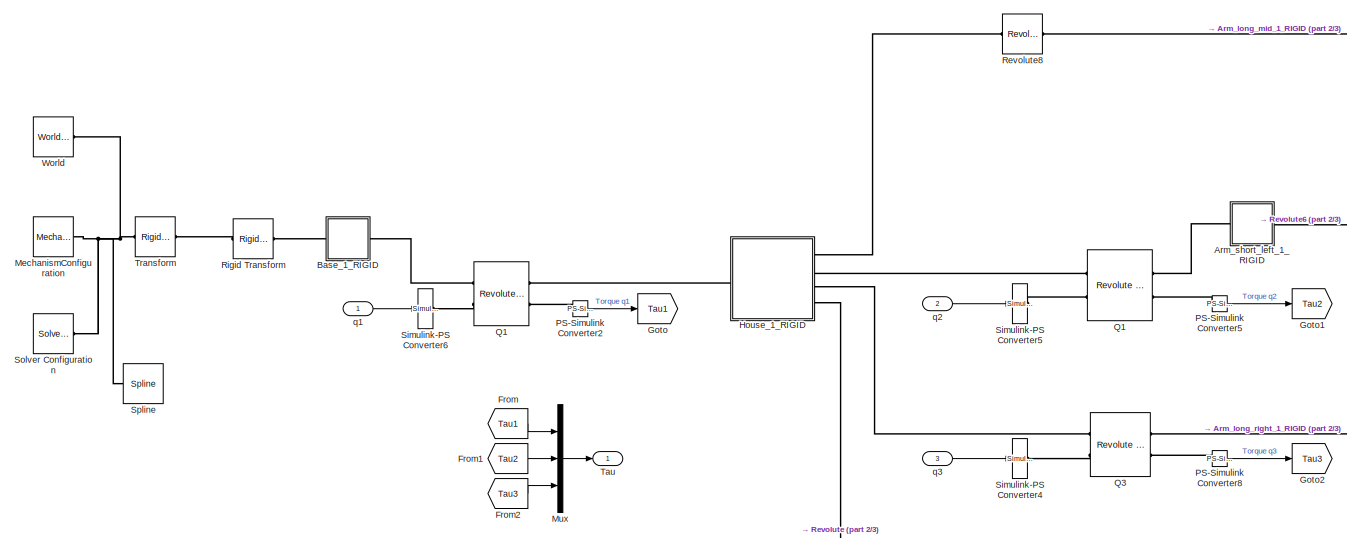
[diagram: Inversa - part 1/3, left side, full height]
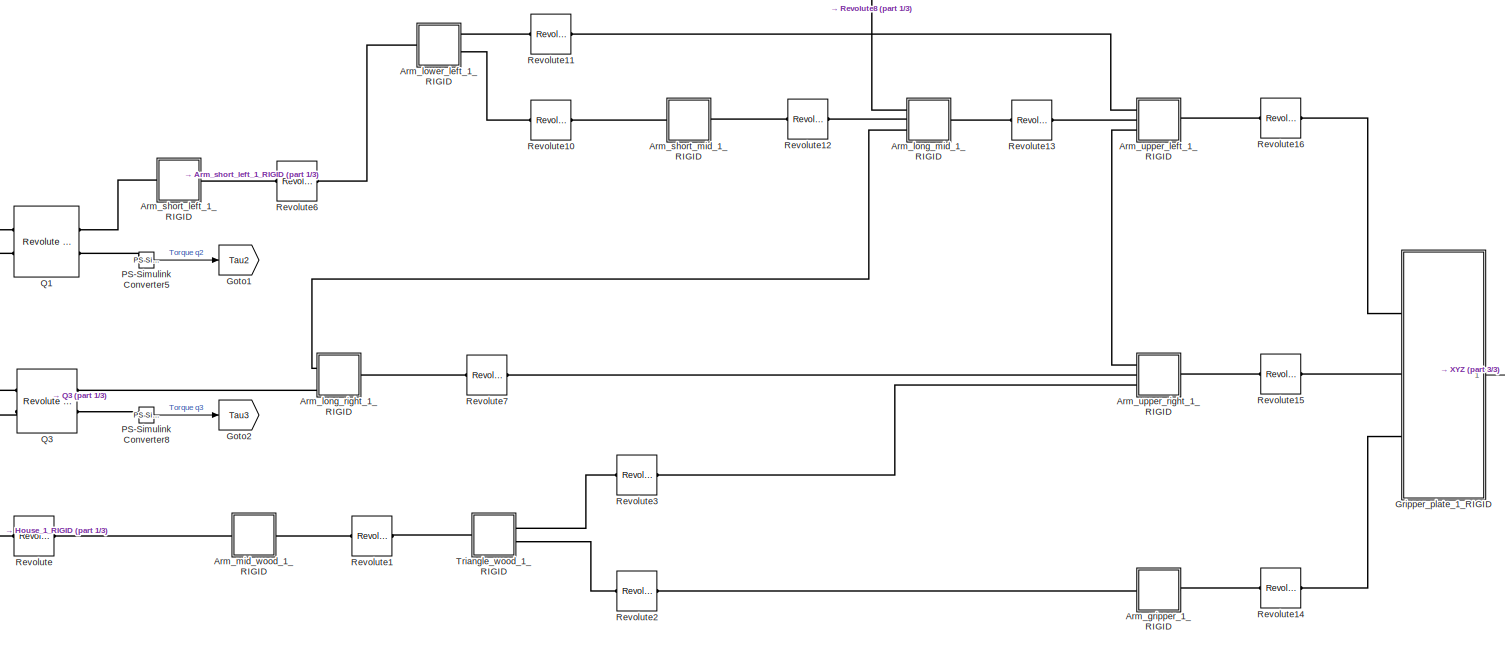
[diagram: Inversa - part 2/3, right side, full height]
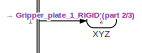
[diagram: Inversa - part 3/3, middle right region]
BLOCK [SubSystem] Inversa
  Ports = [3, 2]
  RequestExecContextInheritance = off
BLOCK [SubSystem] Inversa/Arm_gripper_1_RIGID
  Ports = [0, 0, 0, 0, 0, 1, 1]
  RequestExecContextInheritance = off
BLOCK [PMIOPort] Inversa/Arm_gripper_1_RIGID/F
  Side = Left
BLOCK [PMIOPort] Inversa/Arm_gripper_1_RIGID/F1
  Port = 2
  Side = Right
BLOCK [Reference] Inversa/Arm_gripper_1_RIGID/ReferenceFrame  REF=sm_lib/Frames and
Transforms/Reference
Frame
  Ports = [0, 0, 0, 0, 0, 0, 1]
  SourceBlock = sm_lib/Frames and\nTransforms/Reference\nFrame
  SourceProductBaseCode = MS
  SourceProductName = Simscape Multibody
  SourceType = Reference\nFrame
BLOCK [Reference] Inversa/Arm_gripper_1_RIGID/Solid  REF=sm_lib/Body Elements/File Solid
  Ports = [0, 0, 0, 0, 0, 0, 1]
  SourceBlock = sm_lib/Body Elements/File Solid
  SourceProductBaseCode = MS
  SourceProductName = Simscape Multibody
  SourceType = File Solid
BLOCK [Reference] Inversa/Arm_gripper_1_RIGID/Transform  REF=sm_lib/Frames and
Transforms/Rigid
Transform
  Ports = [0, 0, 0, 0, 0, 1, 1]
  SourceBlock = sm_lib/Frames and\nTransforms/Rigid\nTransform
  SourceProductBaseCode = MS
  SourceProductName = Simscape Multibody
  SourceType = Rigid\nTransform
BLOCK [Reference] Inversa/Arm_gripper_1_RIGID/Transform1  REF=sm_lib/Frames and
Transforms/Rigid
Transform
  Ports = [0, 0, 0, 0, 0, 1, 1]
  SourceBlock = sm_lib/Frames and\nTransforms/Rigid\nTransform
  SourceProductBaseCode = MS
  SourceProductName = Simscape Multibody
  SourceType = Rigid\nTransform
BLOCK [SubSystem] Inversa/Arm_long_mid_1_RIGID
  Ports = [0, 0, 0, 0, 0, 3, 1]
  RequestExecContextInheritance = off
BLOCK [PMIOPort] Inversa/Arm_long_mid_1_RIGID/F
  Side = Left
BLOCK [PMIOPort] Inversa/Arm_long_mid_1_RIGID/F1
  Port = 2
  Side = Left
BLOCK [PMIOPort] Inversa/Arm_long_mid_1_RIGID/F2
  Port = 4
  Side = Right
BLOCK [PMIOPort] Inversa/Arm_long_mid_1_RIGID/F3
  Port = 3
  Side = Left
BLOCK [Reference] Inversa/Arm_long_mid_1_RIGID/ReferenceFrame  REF=sm_lib/Frames and
Transforms/Reference
Frame
  Ports = [0, 0, 0, 0, 0, 0, 1]
  SourceBlock = sm_lib/Frames and\nTransforms/Reference\nFrame
  SourceProductBaseCode = MS
  SourceProductName = Simscape Multibody
  SourceType = Reference\nFrame
BLOCK [Reference] Inversa/Arm_long_mid_1_RIGID/Solid  REF=sm_lib/Body Elements/File Solid
  Ports = [0, 0, 0, 0, 0, 0, 1]
  SourceBlock = sm_lib/Body Elements/File Solid
  SourceProductBaseCode = MS
  SourceProductName = Simscape Multibody
  SourceType = File Solid
BLOCK [Reference] Inversa/Arm_long_mid_1_RIGID/Transform  REF=sm_lib/Frames and
Transforms/Rigid
Transform
  Ports = [0, 0, 0, 0, 0, 1, 1]
  SourceBlock = sm_lib/Frames and\nTransforms/Rigid\nTransform
  SourceProductBaseCode = MS
  SourceProductName = Simscape Multibody
  SourceType = Rigid\nTransform
BLOCK [Reference] Inversa/Arm_long_mid_1_RIGID/Transform1  REF=sm_lib/Frames and
Transforms/Rigid
Transform
  Ports = [0, 0, 0, 0, 0, 1, 1]
  SourceBlock = sm_lib/Frames and\nTransforms/Rigid\nTransform
  SourceProductBaseCode = MS
  SourceProductName = Simscape Multibody
  SourceType = Rigid\nTransform
BLOCK [Reference] Inversa/Arm_long_mid_1_RIGID/Transform2  REF=sm_lib/Frames and
Transforms/Rigid
Transform
  Ports = [0, 0, 0, 0, 0, 1, 1]
  SourceBlock = sm_lib/Frames and\nTransforms/Rigid\nTransform
  SourceProductBaseCode = MS
  SourceProductName = Simscape Multibody
  SourceType = Rigid\nTransform
BLOCK [Reference] Inversa/Arm_long_mid_1_RIGID/Transform3  REF=sm_lib/Frames and
Transforms/Rigid
Transform
  Ports = [0, 0, 0, 0, 0, 1, 1]
  SourceBlock = sm_lib/Frames and\nTransforms/Rigid\nTransform
  SourceProductBaseCode = MS
  SourceProductName = Simscape Multibody
  SourceType = Rigid\nTransform
BLOCK [SubSystem] Inversa/Arm_long_right_1_RIGID
  Ports = [0, 0, 0, 0, 0, 2, 1]
  RequestExecContextInheritance = off
BLOCK [PMIOPort] Inversa/Arm_long_right_1_RIGID/F
  Port = 3
  Side = Right
BLOCK [PMIOPort] Inversa/Arm_long_right_1_RIGID/F1
  Port = 2
  Side = Left
BLOCK [PMIOPort] Inversa/Arm_long_right_1_RIGID/F2
  Side = Left
BLOCK [Reference] Inversa/Arm_long_right_1_RIGID/ReferenceFrame  REF=sm_lib/Frames and
Transforms/Reference
Frame
  Ports = [0, 0, 0, 0, 0, 0, 1]
  SourceBlock = sm_lib/Frames and\nTransforms/Reference\nFrame
  SourceProductBaseCode = MS
  SourceProductName = Simscape Multibody
  SourceType = Reference\nFrame
BLOCK [Reference] Inversa/Arm_long_right_1_RIGID/Solid  REF=sm_lib/Body Elements/File Solid
  Ports = [0, 0, 0, 0, 0, 0, 1]
  SourceBlock = sm_lib/Body Elements/File Solid
  SourceProductBaseCode = MS
  SourceProductName = Simscape Multibody
  SourceType = File Solid
BLOCK [Reference] Inversa/Arm_long_right_1_RIGID/Transform  REF=sm_lib/Frames and
Transforms/Rigid
Transform
  Ports = [0, 0, 0, 0, 0, 1, 1]
  SourceBlock = sm_lib/Frames and\nTransforms/Rigid\nTransform
  SourceProductBaseCode = MS
  SourceProductName = Simscape Multibody
  SourceType = Rigid\nTransform
BLOCK [Reference] Inversa/Arm_long_right_1_RIGID/Transform1  REF=sm_lib/Frames and
Transforms/Rigid
Transform
  Ports = [0, 0, 0, 0, 0, 1, 1]
  SourceBlock = sm_lib/Frames and\nTransforms/Rigid\nTransform
  SourceProductBaseCode = MS
  SourceProductName = Simscape Multibody
  SourceType = Rigid\nTransform
BLOCK [Reference] Inversa/Arm_long_right_1_RIGID/Transform2  REF=sm_lib/Frames and
Transforms/Rigid
Transform
  Ports = [0, 0, 0, 0, 0, 1, 1]
  SourceBlock = sm_lib/Frames and\nTransforms/Rigid\nTransform
  SourceProductBaseCode = MS
  SourceProductName = Simscape Multibody
  SourceType = Rigid\nTransform
BLOCK [SubSystem] Inversa/Arm_lower_left_1_RIGID
  Ports = [0, 0, 0, 0, 0, 1, 2]
  RequestExecContextInheritance = off
BLOCK [PMIOPort] Inversa/Arm_lower_left_1_RIGID/F
  Side = Left
BLOCK [PMIOPort] Inversa/Arm_lower_left_1_RIGID/F1
  Port = 3
  Side = Right
BLOCK [PMIOPort] Inversa/Arm_lower_left_1_RIGID/F2
  Port = 2
  Side = Right
BLOCK [Reference] Inversa/Arm_lower_left_1_RIGID/ReferenceFrame  REF=sm_lib/Frames and
Transforms/Reference
Frame
  Ports = [0, 0, 0, 0, 0, 0, 1]
  SourceBlock = sm_lib/Frames and\nTransforms/Reference\nFrame
  SourceProductBaseCode = MS
  SourceProductName = Simscape Multibody
  SourceType = Reference\nFrame
BLOCK [Reference] Inversa/Arm_lower_left_1_RIGID/Solid  REF=sm_lib/Body Elements/File Solid
  Ports = [0, 0, 0, 0, 0, 0, 1]
  SourceBlock = sm_lib/Body Elements/File Solid
  SourceProductBaseCode = MS
  SourceProductName = Simscape Multibody
  SourceType = File Solid
BLOCK [Reference] Inversa/Arm_lower_left_1_RIGID/Transform  REF=sm_lib/Frames and
Transforms/Rigid
Transform
  Ports = [0, 0, 0, 0, 0, 1, 1]
  SourceBlock = sm_lib/Frames and\nTransforms/Rigid\nTransform
  SourceProductBaseCode = MS
  SourceProductName = Simscape Multibody
  SourceType = Rigid\nTransform
BLOCK [Reference] Inversa/Arm_lower_left_1_RIGID/Transform1  REF=sm_lib/Frames and
Transforms/Rigid
Transform
  Ports = [0, 0, 0, 0, 0, 1, 1]
  SourceBlock = sm_lib/Frames and\nTransforms/Rigid\nTransform
  SourceProductBaseCode = MS
  SourceProductName = Simscape Multibody
  SourceType = Rigid\nTransform
BLOCK [Reference] Inversa/Arm_lower_left_1_RIGID/Transform2  REF=sm_lib/Frames and
Transforms/Rigid
Transform
  Ports = [0, 0, 0, 0, 0, 1, 1]
  SourceBlock = sm_lib/Frames and\nTransforms/Rigid\nTransform
  SourceProductBaseCode = MS
  SourceProductName = Simscape Multibody
  SourceType = Rigid\nTransform
BLOCK [SubSystem] Inversa/Arm_mid_wood_1_RIGID
  Ports = [0, 0, 0, 0, 0, 1, 1]
  RequestExecContextInheritance = off
BLOCK [PMIOPort] Inversa/Arm_mid_wood_1_RIGID/F
  Side = Left
BLOCK [PMIOPort] Inversa/Arm_mid_wood_1_RIGID/F1
  Port = 2
  Side = Right
BLOCK [Reference] Inversa/Arm_mid_wood_1_RIGID/ReferenceFrame  REF=sm_lib/Frames and
Transforms/Reference
Frame
  Ports = [0, 0, 0, 0, 0, 0, 1]
  SourceBlock = sm_lib/Frames and\nTransforms/Reference\nFrame
  SourceProductBaseCode = MS
  SourceProductName = Simscape Multibody
  SourceType = Reference\nFrame
BLOCK [Reference] Inversa/Arm_mid_wood_1_RIGID/Solid  REF=sm_lib/Body Elements/File Solid
  Ports = [0, 0, 0, 0, 0, 0, 1]
  SourceBlock = sm_lib/Body Elements/File Solid
  SourceProductBaseCode = MS
  SourceProductName = Simscape Multibody
  SourceType = File Solid
BLOCK [Reference] Inversa/Arm_mid_wood_1_RIGID/Transform  REF=sm_lib/Frames and
Transforms/Rigid
Transform
  Ports = [0, 0, 0, 0, 0, 1, 1]
  SourceBlock = sm_lib/Frames and\nTransforms/Rigid\nTransform
  SourceProductBaseCode = MS
  SourceProductName = Simscape Multibody
  SourceType = Rigid\nTransform
BLOCK [Reference] Inversa/Arm_mid_wood_1_RIGID/Transform1  REF=sm_lib/Frames and
Transforms/Rigid
Transform
  Ports = [0, 0, 0, 0, 0, 1, 1]
  SourceBlock = sm_lib/Frames and\nTransforms/Rigid\nTransform
  SourceProductBaseCode = MS
  SourceProductName = Simscape Multibody
  SourceType = Rigid\nTransform
BLOCK [SubSystem] Inversa/Arm_short_left_1_RIGID
  Ports = [0, 0, 0, 0, 0, 1, 1]
  RequestExecContextInheritance = off
BLOCK [PMIOPort] Inversa/Arm_short_left_1_RIGID/F
  Side = Left
BLOCK [PMIOPort] Inversa/Arm_short_left_1_RIGID/F1
  Port = 2
  Side = Right
BLOCK [Reference] Inversa/Arm_short_left_1_RIGID/ReferenceFrame  REF=sm_lib/Frames and
Transforms/Reference
Frame
  Ports = [0, 0, 0, 0, 0, 0, 1]
  SourceBlock = sm_lib/Frames and\nTransforms/Reference\nFrame
  SourceProductBaseCode = MS
  SourceProductName = Simscape Multibody
  SourceType = Reference\nFrame
BLOCK [Reference] Inversa/Arm_short_left_1_RIGID/Solid  REF=sm_lib/Body Elements/File Solid
  Ports = [0, 0, 0, 0, 0, 0, 1]
  SourceBlock = sm_lib/Body Elements/File Solid
  SourceProductBaseCode = MS
  SourceProductName = Simscape Multibody
  SourceType = File Solid
BLOCK [Reference] Inversa/Arm_short_left_1_RIGID/Transform  REF=sm_lib/Frames and
Transforms/Rigid
Transform
  Ports = [0, 0, 0, 0, 0, 1, 1]
  SourceBlock = sm_lib/Frames and\nTransforms/Rigid\nTransform
  SourceProductBaseCode = MS
  SourceProductName = Simscape Multibody
  SourceType = Rigid\nTransform
BLOCK [Reference] Inversa/Arm_short_left_1_RIGID/Transform1  REF=sm_lib/Frames and
Transforms/Rigid
Transform
  Ports = [0, 0, 0, 0, 0, 1, 1]
  SourceBlock = sm_lib/Frames and\nTransforms/Rigid\nTransform
  SourceProductBaseCode = MS
  SourceProductName = Simscape Multibody
  SourceType = Rigid\nTransform
BLOCK [SubSystem] Inversa/Arm_short_mid_1_RIGID
  Ports = [0, 0, 0, 0, 0, 1, 1]
  RequestExecContextInheritance = off
BLOCK [PMIOPort] Inversa/Arm_short_mid_1_RIGID/F
  Side = Left
BLOCK [PMIOPort] Inversa/Arm_short_mid_1_RIGID/F1
  Port = 2
  Side = Right
BLOCK [Reference] Inversa/Arm_short_mid_1_RIGID/ReferenceFrame  REF=sm_lib/Frames and
Transforms/Reference
Frame
  Ports = [0, 0, 0, 0, 0, 0, 1]
  SourceBlock = sm_lib/Frames and\nTransforms/Reference\nFrame
  SourceProductBaseCode = MS
  SourceProductName = Simscape Multibody
  SourceType = Reference\nFrame
BLOCK [Reference] Inversa/Arm_short_mid_1_RIGID/Solid  REF=sm_lib/Body Elements/File Solid
  Ports = [0, 0, 0, 0, 0, 0, 1]
  SourceBlock = sm_lib/Body Elements/File Solid
  SourceProductBaseCode = MS
  SourceProductName = Simscape Multibody
  SourceType = File Solid
BLOCK [Reference] Inversa/Arm_short_mid_1_RIGID/Transform  REF=sm_lib/Frames and
Transforms/Rigid
Transform
  Ports = [0, 0, 0, 0, 0, 1, 1]
  SourceBlock = sm_lib/Frames and\nTransforms/Rigid\nTransform
  SourceProductBaseCode = MS
  SourceProductName = Simscape Multibody
  SourceType = Rigid\nTransform
BLOCK [Reference] Inversa/Arm_short_mid_1_RIGID/Transform1  REF=sm_lib/Frames and
Transforms/Rigid
Transform
  Ports = [0, 0, 0, 0, 0, 1, 1]
  SourceBlock = sm_lib/Frames and\nTransforms/Rigid\nTransform
  SourceProductBaseCode = MS
  SourceProductName = Simscape Multibody
  SourceType = Rigid\nTransform
BLOCK [SubSystem] Inversa/Arm_upper_left_1_RIGID
  Ports = [0, 0, 0, 0, 0, 3, 1]
  RequestExecContextInheritance = off
BLOCK [PMIOPort] Inversa/Arm_upper_left_1_RIGID/F
  Port = 3
  Side = Left
BLOCK [PMIOPort] Inversa/Arm_upper_left_1_RIGID/F1
  Side = Left
BLOCK [PMIOPort] Inversa/Arm_upper_left_1_RIGID/F2
  Port = 2
  Side = Left
BLOCK [PMIOPort] Inversa/Arm_upper_left_1_RIGID/F3
  Port = 4
  Side = Right
BLOCK [Reference] Inversa/Arm_upper_left_1_RIGID/ReferenceFrame  REF=sm_lib/Frames and
Transforms/Reference
Frame
  Ports = [0, 0, 0, 0, 0, 0, 1]
  SourceBlock = sm_lib/Frames and\nTransforms/Reference\nFrame
  SourceProductBaseCode = MS
  SourceProductName = Simscape Multibody
  SourceType = Reference\nFrame
BLOCK [Reference] Inversa/Arm_upper_left_1_RIGID/Solid  REF=sm_lib/Body Elements/File Solid
  Ports = [0, 0, 0, 0, 0, 0, 1]
  SourceBlock = sm_lib/Body Elements/File Solid
  SourceProductBaseCode = MS
  SourceProductName = Simscape Multibody
  SourceType = File Solid
BLOCK [Reference] Inversa/Arm_upper_left_1_RIGID/Transform  REF=sm_lib/Frames and
Transforms/Rigid
Transform
  Ports = [0, 0, 0, 0, 0, 1, 1]
  SourceBlock = sm_lib/Frames and\nTransforms/Rigid\nTransform
  SourceProductBaseCode = MS
  SourceProductName = Simscape Multibody
  SourceType = Rigid\nTransform
BLOCK [Reference] Inversa/Arm_upper_left_1_RIGID/Transform1  REF=sm_lib/Frames and
Transforms/Rigid
Transform
  Ports = [0, 0, 0, 0, 0, 1, 1]
  SourceBlock = sm_lib/Frames and\nTransforms/Rigid\nTransform
  SourceProductBaseCode = MS
  SourceProductName = Simscape Multibody
  SourceType = Rigid\nTransform
BLOCK [Reference] Inversa/Arm_upper_left_1_RIGID/Transform2  REF=sm_lib/Frames and
Transforms/Rigid
Transform
  Ports = [0, 0, 0, 0, 0, 1, 1]
  SourceBlock = sm_lib/Frames and\nTransforms/Rigid\nTransform
  SourceProductBaseCode = MS
  SourceProductName = Simscape Multibody
  SourceType = Rigid\nTransform
BLOCK [Reference] Inversa/Arm_upper_left_1_RIGID/Transform3  REF=sm_lib/Frames and
Transforms/Rigid
Transform
  Ports = [0, 0, 0, 0, 0, 1, 1]
  SourceBlock = sm_lib/Frames and\nTransforms/Rigid\nTransform
  SourceProductBaseCode = MS
  SourceProductName = Simscape Multibody
  SourceType = Rigid\nTransform
BLOCK [SubSystem] Inversa/Arm_upper_right_1_RIGID
  Ports = [0, 0, 0, 0, 0, 3, 1]
  RequestExecContextInheritance = off
BLOCK [PMIOPort] Inversa/Arm_upper_right_1_RIGID/F
  Port = 3
  Side = Left
BLOCK [PMIOPort] Inversa/Arm_upper_right_1_RIGID/F1
  Side = Left
BLOCK [PMIOPort] Inversa/Arm_upper_right_1_RIGID/F2
  Port = 2
  Side = Left
BLOCK [PMIOPort] Inversa/Arm_upper_right_1_RIGID/F3
  Port = 4
  Side = Right
BLOCK [Reference] Inversa/Arm_upper_right_1_RIGID/ReferenceFrame  REF=sm_lib/Frames and
Transforms/Reference
Frame
  Ports = [0, 0, 0, 0, 0, 0, 1]
  SourceBlock = sm_lib/Frames and\nTransforms/Reference\nFrame
  SourceProductBaseCode = MS
  SourceProductName = Simscape Multibody
  SourceType = Reference\nFrame
BLOCK [Reference] Inversa/Arm_upper_right_1_RIGID/Solid  REF=sm_lib/Body Elements/File Solid
  Ports = [0, 0, 0, 0, 0, 0, 1]
  SourceBlock = sm_lib/Body Elements/File Solid
  SourceProductBaseCode = MS
  SourceProductName = Simscape Multibody
  SourceType = File Solid
BLOCK [Reference] Inversa/Arm_upper_right_1_RIGID/Transform  REF=sm_lib/Frames and
Transforms/Rigid
Transform
  Ports = [0, 0, 0, 0, 0, 1, 1]
  SourceBlock = sm_lib/Frames and\nTransforms/Rigid\nTransform
  SourceProductBaseCode = MS
  SourceProductName = Simscape Multibody
  SourceType = Rigid\nTransform
BLOCK [Reference] Inversa/Arm_upper_right_1_RIGID/Transform1  REF=sm_lib/Frames and
Transforms/Rigid
Transform
  Ports = [0, 0, 0, 0, 0, 1, 1]
  SourceBlock = sm_lib/Frames and\nTransforms/Rigid\nTransform
  SourceProductBaseCode = MS
  SourceProductName = Simscape Multibody
  SourceType = Rigid\nTransform
BLOCK [Reference] Inversa/Arm_upper_right_1_RIGID/Transform2  REF=sm_lib/Frames and
Transforms/Rigid
Transform
  Ports = [0, 0, 0, 0, 0, 1, 1]
  SourceBlock = sm_lib/Frames and\nTransforms/Rigid\nTransform
  SourceProductBaseCode = MS
  SourceProductName = Simscape Multibody
  SourceType = Rigid\nTransform
BLOCK [Reference] Inversa/Arm_upper_right_1_RIGID/Transform3  REF=sm_lib/Frames and
Transforms/Rigid
Transform
  Ports = [0, 0, 0, 0, 0, 1, 1]
  SourceBlock = sm_lib/Frames and\nTransforms/Rigid\nTransform
  SourceProductBaseCode = MS
  SourceProductName = Simscape Multibody
  SourceType = Rigid\nTransform
BLOCK [SubSystem] Inversa/Base_1_RIGID
  Ports = [0, 0, 0, 0, 0, 1, 1]
  RequestExecContextInheritance = off
BLOCK [PMIOPort] Inversa/Base_1_RIGID/F
  Port = 2
  Side = Right
BLOCK [PMIOPort] Inversa/Base_1_RIGID/F1
  Side = Left
BLOCK [Reference] Inversa/Base_1_RIGID/ReferenceFrame  REF=sm_lib/Frames and
Transforms/Reference
Frame
  Ports = [0, 0, 0, 0, 0, 0, 1]
  SourceBlock = sm_lib/Frames and\nTransforms/Reference\nFrame
  SourceProductBaseCode = MS
  SourceProductName = Simscape Multibody
  SourceType = Reference\nFrame
BLOCK [Reference] Inversa/Base_1_RIGID/Solid  REF=sm_lib/Body Elements/File Solid
  Ports = [0, 0, 0, 0, 0, 0, 1]
  SourceBlock = sm_lib/Body Elements/File Solid
  SourceProductBaseCode = MS
  SourceProductName = Simscape Multibody
  SourceType = File Solid
BLOCK [Reference] Inversa/Base_1_RIGID/Transform  REF=sm_lib/Frames and
Transforms/Rigid
Transform
  Ports = [0, 0, 0, 0, 0, 1, 1]
  SourceBlock = sm_lib/Frames and\nTransforms/Rigid\nTransform
  SourceProductBaseCode = MS
  SourceProductName = Simscape Multibody
  SourceType = Rigid\nTransform
BLOCK [From] Inversa/From
  GotoTag = Tau1
BLOCK [From] Inversa/From1
  GotoTag = Tau2
BLOCK [From] Inversa/From2
  GotoTag = Tau3
BLOCK [Goto] Inversa/Goto
  GotoTag = Tau1
BLOCK [Goto] Inversa/Goto1
  GotoTag = Tau2
BLOCK [Goto] Inversa/Goto2
  GotoTag = Tau3
BLOCK [SubSystem] Inversa/Gripper_plate_1_RIGID
  Ports = [0, 1, 0, 0, 0, 3]
  RequestExecContextInheritance = off
BLOCK [PMIOPort] Inversa/Gripper_plate_1_RIGID/F
  Port = 3
  Side = Left
BLOCK [PMIOPort] Inversa/Gripper_plate_1_RIGID/F1
  Port = 2
  Side = Left
BLOCK [PMIOPort] Inversa/Gripper_plate_1_RIGID/F2
  Side = Left
BLOCK [Mux] Inversa/Gripper_plate_1_RIGID/Mux
  DisplayOption = bar
  Inputs = 3
  Ports = [3, 1]
BLOCK [Reference] Inversa/Gripper_plate_1_RIGID/PS-Simulink Converter  REF=nesl_utility/PS-Simulink
Converter
  Ports = [0, 1, 0, 0, 0, 1]
  SourceBlock = nesl_utility/PS-Simulink\nConverter
  SourceProductBaseCode = SS
  SourceProductName = Simscape
  SourceType = PS-Simulink\nConverter
BLOCK [Reference] Inversa/Gripper_plate_1_RIGID/PS-Simulink Converter1  REF=nesl_utility/PS-Simulink
Converter
  Ports = [0, 1, 0, 0, 0, 1]
  SourceBlock = nesl_utility/PS-Simulink\nConverter
  SourceProductBaseCode = SS
  SourceProductName = Simscape
  SourceType = PS-Simulink\nConverter
BLOCK [Reference] Inversa/Gripper_plate_1_RIGID/PS-Simulink Converter2  REF=nesl_utility/PS-Simulink
Converter
  Ports = [0, 1, 0, 0, 0, 1]
  SourceBlock = nesl_utility/PS-Simulink\nConverter
  SourceProductBaseCode = SS
  SourceProductName = Simscape
  SourceType = PS-Simulink\nConverter
BLOCK [Reference] Inversa/Gripper_plate_1_RIGID/ReferenceFrame  REF=sm_lib/Frames and
Transforms/Reference
Frame
  Ports = [0, 0, 0, 0, 0, 0, 1]
  SourceBlock = sm_lib/Frames and\nTransforms/Reference\nFrame
  SourceProductBaseCode = MS
  SourceProductName = Simscape Multibody
  SourceType = Reference\nFrame
BLOCK [Reference] Inversa/Gripper_plate_1_RIGID/SMLINK_CS1Xform  REF=sm_lib/Frames and
Transforms/Rigid
Transform
  Ports = [0, 0, 0, 0, 0, 1, 1]
  SourceBlock = sm_lib/Frames and\nTransforms/Rigid\nTransform
  SourceProductBaseCode = MS
  SourceProductName = Simscape Multibody
  SourceType = Rigid\nTransform
BLOCK [Reference] Inversa/Gripper_plate_1_RIGID/Solid  REF=sm_lib/Body Elements/File Solid
  Ports = [0, 0, 0, 0, 0, 0, 1]
  SourceBlock = sm_lib/Body Elements/File Solid
  SourceProductBaseCode = MS
  SourceProductName = Simscape Multibody
  SourceType = File Solid
BLOCK [Reference] Inversa/Gripper_plate_1_RIGID/Transform  REF=sm_lib/Frames and
Transforms/Rigid
Transform
  Ports = [0, 0, 0, 0, 0, 1, 1]
  SourceBlock = sm_lib/Frames and\nTransforms/Rigid\nTransform
  SourceProductBaseCode = MS
  SourceProductName = Simscape Multibody
  SourceType = Rigid\nTransform
BLOCK [Reference] Inversa/Gripper_plate_1_RIGID/Transform Sensor  REF=sm_lib/Frames and
Transforms/Transform
Sensor
  Ports = [0, 0, 0, 0, 0, 1, 4]
  SourceBlock = sm_lib/Frames and\nTransforms/Transform\nSensor
  SourceProductBaseCode = MS
  SourceProductName = Simscape Multibody
  SourceType = Transform\nSensor
BLOCK [Reference] Inversa/Gripper_plate_1_RIGID/Transform1  REF=sm_lib/Frames and
Transforms/Rigid
Transform
  Ports = [0, 0, 0, 0, 0, 1, 1]
  SourceBlock = sm_lib/Frames and\nTransforms/Rigid\nTransform
  SourceProductBaseCode = MS
  SourceProductName = Simscape Multibody
  SourceType = Rigid\nTransform
BLOCK [Reference] Inversa/Gripper_plate_1_RIGID/Transform2  REF=sm_lib/Frames and
Transforms/Rigid
Transform
  Ports = [0, 0, 0, 0, 0, 1, 1]
  SourceBlock = sm_lib/Frames and\nTransforms/Rigid\nTransform
  SourceProductBaseCode = MS
  SourceProductName = Simscape Multibody
  SourceType = Rigid\nTransform
BLOCK [Reference] Inversa/Gripper_plate_1_RIGID/World Frame  REF=sm_lib/Frames and
Transforms/World Frame
  Ports = [0, 0, 0, 0, 0, 0, 1]
  SourceBlock = sm_lib/Frames and\nTransforms/World Frame
  SourceProductBaseCode = MS
  SourceProductName = Simscape Multibody
  SourceType = World Frame
BLOCK [Outport] Inversa/Gripper_plate_1_RIGID/XYZ
  IconDisplay = Port number
BLOCK [SubSystem] Inversa/House_1_RIGID
  Ports = [0, 0, 0, 0, 0, 1, 4]
  RequestExecContextInheritance = off
BLOCK [PMIOPort] Inversa/House_1_RIGID/F
  Port = 5
  Side = Right
BLOCK [PMIOPort] Inversa/House_1_RIGID/F1
  Side = Left
BLOCK [PMIOPort] Inversa/House_1_RIGID/F2
  Port = 3
  Side = Right
BLOCK [PMIOPort] Inversa/House_1_RIGID/F3
  Port = 2
  Side = Right
BLOCK [PMIOPort] Inversa/House_1_RIGID/F4
  Port = 4
  Side = Right
BLOCK [Reference] Inversa/House_1_RIGID/ReferenceFrame  REF=sm_lib/Frames and
Transforms/Reference
Frame
  Ports = [0, 0, 0, 0, 0, 0, 1]
  SourceBlock = sm_lib/Frames and\nTransforms/Reference\nFrame
  SourceProductBaseCode = MS
  SourceProductName = Simscape Multibody
  SourceType = Reference\nFrame
BLOCK [Reference] Inversa/House_1_RIGID/Solid  REF=sm_lib/Body Elements/File Solid
  Ports = [0, 0, 0, 0, 0, 0, 1]
  SourceBlock = sm_lib/Body Elements/File Solid
  SourceProductBaseCode = MS
  SourceProductName = Simscape Multibody
  SourceType = File Solid
BLOCK [Reference] Inversa/House_1_RIGID/Transform  REF=sm_lib/Frames and
Transforms/Rigid
Transform
  Ports = [0, 0, 0, 0, 0, 1, 1]
  SourceBlock = sm_lib/Frames and\nTransforms/Rigid\nTransform
  SourceProductBaseCode = MS
  SourceProductName = Simscape Multibody
  SourceType = Rigid\nTransform
BLOCK [Reference] Inversa/House_1_RIGID/Transform1  REF=sm_lib/Frames and
Transforms/Rigid
Transform
  Ports = [0, 0, 0, 0, 0, 1, 1]
  SourceBlock = sm_lib/Frames and\nTransforms/Rigid\nTransform
  SourceProductBaseCode = MS
  SourceProductName = Simscape Multibody
  SourceType = Rigid\nTransform
BLOCK [Reference] Inversa/House_1_RIGID/Transform2  REF=sm_lib/Frames and
Transforms/Rigid
Transform
  Ports = [0, 0, 0, 0, 0, 1, 1]
  SourceBlock = sm_lib/Frames and\nTransforms/Rigid\nTransform
  SourceProductBaseCode = MS
  SourceProductName = Simscape Multibody
  SourceType = Rigid\nTransform
BLOCK [Reference] Inversa/House_1_RIGID/Transform3  REF=sm_lib/Frames and
Transforms/Rigid
Transform
  Ports = [0, 0, 0, 0, 0, 1, 1]
  SourceBlock = sm_lib/Frames and\nTransforms/Rigid\nTransform
  SourceProductBaseCode = MS
  SourceProductName = Simscape Multibody
  SourceType = Rigid\nTransform
BLOCK [Reference] Inversa/House_1_RIGID/Transform4  REF=sm_lib/Frames and
Transforms/Rigid
Transform
  Ports = [0, 0, 0, 0, 0, 1, 1]
  SourceBlock = sm_lib/Frames and\nTransforms/Rigid\nTransform
  SourceProductBaseCode = MS
  SourceProductName = Simscape Multibody
  SourceType = Rigid\nTransform
BLOCK [Reference] Inversa/MechanismConfiguration  REF=sm_lib/Utilities/Mechanism
Configuration
  Ports = [0, 0, 0, 0, 0, 0, 1]
  SourceBlock = sm_lib/Utilities/Mechanism\nConfiguration
  SourceProductBaseCode = MS
  SourceProductName = Simscape Multibody
  SourceType = Mechanism\nConfiguration
BLOCK [Mux] Inversa/Mux
  DisplayOption = bar
  Inputs = 3
  Ports = [3, 1]
BLOCK [Reference] Inversa/PS-Simulink Converter2  REF=nesl_utility/PS-Simulink
Converter
  Ports = [0, 1, 0, 0, 0, 1]
  SourceBlock = nesl_utility/PS-Simulink\nConverter
  SourceProductBaseCode = SS
  SourceProductName = Simscape
  SourceType = PS-Simulink\nConverter
BLOCK [Reference] Inversa/PS-Simulink Converter5  REF=nesl_utility/PS-Simulink
Converter
  Ports = [0, 1, 0, 0, 0, 1]
  SourceBlock = nesl_utility/PS-Simulink\nConverter
  SourceProductBaseCode = SS
  SourceProductName = Simscape
  SourceType = PS-Simulink\nConverter
BLOCK [Reference] Inversa/PS-Simulink Converter8  REF=nesl_utility/PS-Simulink
Converter
  Ports = [0, 1, 0, 0, 0, 1]
  SourceBlock = nesl_utility/PS-Simulink\nConverter
  SourceProductBaseCode = SS
  SourceProductName = Simscape
  SourceType = PS-Simulink\nConverter
BLOCK [Reference] Inversa/Q1  REF=sm_lib/Joints/Revolute Joint
  Ports = [0, 0, 0, 0, 0, 2, 2]
  SourceBlock = sm_lib/Joints/Revolute Joint
  SourceProductBaseCode = MS
  SourceProductName = Simscape Multibody
  SourceType = Revolute Joint
BLOCK [Reference] Inversa/Q1   REF=sm_lib/Joints/Revolute Joint
  Ports = [0, 0, 0, 0, 0, 2, 2]
  SourceBlock = sm_lib/Joints/Revolute Joint
  SourceProductBaseCode = MS
  SourceProductName = Simscape Multibody
  SourceType = Revolute Joint
BLOCK [Reference] Inversa/Q3  REF=sm_lib/Joints/Revolute Joint
  Ports = [0, 0, 0, 0, 0, 2, 2]
  SourceBlock = sm_lib/Joints/Revolute Joint
  SourceProductBaseCode = MS
  SourceProductName = Simscape Multibody
  SourceType = Revolute Joint
BLOCK [Reference] Inversa/Revolute  REF=sm_lib/Joints/Revolute Joint
  Ports = [0, 0, 0, 0, 0, 1, 1]
  SourceBlock = sm_lib/Joints/Revolute Joint
  SourceProductBaseCode = MS
  SourceProductName = Simscape Multibody
  SourceType = Revolute Joint
BLOCK [Reference] Inversa/Revolute1  REF=sm_lib/Joints/Revolute Joint
  Ports = [0, 0, 0, 0, 0, 1, 1]
  SourceBlock = sm_lib/Joints/Revolute Joint
  SourceProductBaseCode = MS
  SourceProductName = Simscape Multibody
  SourceType = Revolute Joint
BLOCK [Reference] Inversa/Revolute10  REF=sm_lib/Joints/Revolute Joint
  Ports = [0, 0, 0, 0, 0, 1, 1]
  SourceBlock = sm_lib/Joints/Revolute Joint
  SourceProductBaseCode = MS
  SourceProductName = Simscape Multibody
  SourceType = Revolute Joint
BLOCK [Reference] Inversa/Revolute11  REF=sm_lib/Joints/Revolute Joint
  Ports = [0, 0, 0, 0, 0, 1, 1]
  SourceBlock = sm_lib/Joints/Revolute Joint
  SourceProductBaseCode = MS
  SourceProductName = Simscape Multibody
  SourceType = Revolute Joint
BLOCK [Reference] Inversa/Revolute12  REF=sm_lib/Joints/Revolute Joint
  Ports = [0, 0, 0, 0, 0, 1, 1]
  SourceBlock = sm_lib/Joints/Revolute Joint
  SourceProductBaseCode = MS
  SourceProductName = Simscape Multibody
  SourceType = Revolute Joint
BLOCK [Reference] Inversa/Revolute13  REF=sm_lib/Joints/Revolute Joint
  Ports = [0, 0, 0, 0, 0, 1, 1]
  SourceBlock = sm_lib/Joints/Revolute Joint
  SourceProductBaseCode = MS
  SourceProductName = Simscape Multibody
  SourceType = Revolute Joint
BLOCK [Reference] Inversa/Revolute14  REF=sm_lib/Joints/Revolute Joint
  Ports = [0, 0, 0, 0, 0, 1, 1]
  SourceBlock = sm_lib/Joints/Revolute Joint
  SourceProductBaseCode = MS
  SourceProductName = Simscape Multibody
  SourceType = Revolute Joint
BLOCK [Reference] Inversa/Revolute15  REF=sm_lib/Joints/Revolute Joint
  Ports = [0, 0, 0, 0, 0, 1, 1]
  SourceBlock = sm_lib/Joints/Revolute Joint
  SourceProductBaseCode = MS
  SourceProductName = Simscape Multibody
  SourceType = Revolute Joint
BLOCK [Reference] Inversa/Revolute16  REF=sm_lib/Joints/Revolute Joint
  Ports = [0, 0, 0, 0, 0, 1, 1]
  SourceBlock = sm_lib/Joints/Revolute Joint
  SourceProductBaseCode = MS
  SourceProductName = Simscape Multibody
  SourceType = Revolute Joint
BLOCK [Reference] Inversa/Revolute2  REF=sm_lib/Joints/Revolute Joint
  Ports = [0, 0, 0, 0, 0, 1, 1]
  SourceBlock = sm_lib/Joints/Revolute Joint
  SourceProductBaseCode = MS
  SourceProductName = Simscape Multibody
  SourceType = Revolute Joint
BLOCK [Reference] Inversa/Revolute3  REF=sm_lib/Joints/Revolute Joint
  Ports = [0, 0, 0, 0, 0, 1, 1]
  SourceBlock = sm_lib/Joints/Revolute Joint
  SourceProductBaseCode = MS
  SourceProductName = Simscape Multibody
  SourceType = Revolute Joint
BLOCK [Reference] Inversa/Revolute6  REF=sm_lib/Joints/Revolute Joint
  Ports = [0, 0, 0, 0, 0, 1, 1]
  SourceBlock = sm_lib/Joints/Revolute Joint
  SourceProductBaseCode = MS
  SourceProductName = Simscape Multibody
  SourceType = Revolute Joint
BLOCK [Reference] Inversa/Revolute7  REF=sm_lib/Joints/Revolute Joint
  Ports = [0, 0, 0, 0, 0, 1, 1]
  SourceBlock = sm_lib/Joints/Revolute Joint
  SourceProductBaseCode = MS
  SourceProductName = Simscape Multibody
  SourceType = Revolute Joint
BLOCK [Reference] Inversa/Revolute8  REF=sm_lib/Joints/Revolute Joint
  Ports = [0, 0, 0, 0, 0, 1, 1]
  SourceBlock = sm_lib/Joints/Revolute Joint
  SourceProductBaseCode = MS
  SourceProductName = Simscape Multibody
  SourceType = Revolute Joint
BLOCK [Reference] Inversa/Rigid Transform  REF=sm_lib/Frames and
Transforms/Rigid
Transform
  Ports = [0, 0, 0, 0, 0, 1, 1]
  SourceBlock = sm_lib/Frames and\nTransforms/Rigid\nTransform
  SourceProductBaseCode = MS
  SourceProductName = Simscape Multibody
  SourceType = Rigid\nTransform
BLOCK [Reference] Inversa/Simulink-PS Converter4  REF=nesl_utility/Simulink-PS
Converter
  Ports = [1, 0, 0, 0, 0, 0, 1]
  SourceBlock = nesl_utility/Simulink-PS\nConverter
  SourceProductBaseCode = SS
  SourceProductName = Simscape
  SourceType = Simulink-PS\nConverter
BLOCK [Reference] Inversa/Simulink-PS Converter5  REF=nesl_utility/Simulink-PS
Converter
  Ports = [1, 0, 0, 0, 0, 0, 1]
  SourceBlock = nesl_utility/Simulink-PS\nConverter
  SourceProductBaseCode = SS
  SourceProductName = Simscape
  SourceType = Simulink-PS\nConverter
BLOCK [Reference] Inversa/Simulink-PS Converter6  REF=nesl_utility/Simulink-PS
Converter
  Ports = [1, 0, 0, 0, 0, 0, 1]
  SourceBlock = nesl_utility/Simulink-PS\nConverter
  SourceProductBaseCode = SS
  SourceProductName = Simscape
  SourceType = Simulink-PS\nConverter
BLOCK [Reference] Inversa/Solver Configuration  REF=nesl_utility/Solver
Configuration
  Ports = [0, 0, 0, 0, 0, 0, 1]
  SourceBlock = nesl_utility/Solver\nConfiguration
  SourceProductBaseCode = SS
  SourceProductName = Simscape
  SourceType = Solver\nConfiguration
BLOCK [Reference] Inversa/Spline  REF=sm_lib/Curves and Surfaces/Spline
  Ports = [0, 0, 0, 0, 0, 1, 1]
  SourceBlock = sm_lib/Curves and Surfaces/Spline
  SourceProductBaseCode = MS
  SourceProductName = Simscape Multibody
  SourceType = Spline
BLOCK [Outport] Inversa/Tau
  IconDisplay = Port number
BLOCK [Reference] Inversa/Transform  REF=sm_lib/Frames and
Transforms/Rigid
Transform
  Ports = [0, 0, 0, 0, 0, 1, 1]
  SourceBlock = sm_lib/Frames and\nTransforms/Rigid\nTransform
  SourceProductBaseCode = MS
  SourceProductName = Simscape Multibody
  SourceType = Rigid\nTransform
BLOCK [SubSystem] Inversa/Triangle_wood_1_RIGID
  Ports = [0, 0, 0, 0, 0, 1, 2]
  RequestExecContextInheritance = off
BLOCK [PMIOPort] Inversa/Triangle_wood_1_RIGID/F
  Side = Left
BLOCK [PMIOPort] Inversa/Triangle_wood_1_RIGID/F1
  Port = 3
  Side = Right
BLOCK [PMIOPort] Inversa/Triangle_wood_1_RIGID/F2
  Port = 2
  Side = Right
BLOCK [Reference] Inversa/Triangle_wood_1_RIGID/ReferenceFrame  REF=sm_lib/Frames and
Transforms/Reference
Frame
  Ports = [0, 0, 0, 0, 0, 0, 1]
  SourceBlock = sm_lib/Frames and\nTransforms/Reference\nFrame
  SourceProductBaseCode = MS
  SourceProductName = Simscape Multibody
  SourceType = Reference\nFrame
BLOCK [Reference] Inversa/Triangle_wood_1_RIGID/Solid  REF=sm_lib/Body Elements/File Solid
  Ports = [0, 0, 0, 0, 0, 0, 1]
  SourceBlock = sm_lib/Body Elements/File Solid
  SourceProductBaseCode = MS
  SourceProductName = Simscape Multibody
  SourceType = File Solid
BLOCK [Reference] Inversa/Triangle_wood_1_RIGID/Transform  REF=sm_lib/Frames and
Transforms/Rigid
Transform
  Ports = [0, 0, 0, 0, 0, 1, 1]
  SourceBlock = sm_lib/Frames and\nTransforms/Rigid\nTransform
  SourceProductBaseCode = MS
  SourceProductName = Simscape Multibody
  SourceType = Rigid\nTransform
BLOCK [Reference] Inversa/Triangle_wood_1_RIGID/Transform1  REF=sm_lib/Frames and
Transforms/Rigid
Transform
  Ports = [0, 0, 0, 0, 0, 1, 1]
  SourceBlock = sm_lib/Frames and\nTransforms/Rigid\nTransform
  SourceProductBaseCode = MS
  SourceProductName = Simscape Multibody
  SourceType = Rigid\nTransform
BLOCK [Reference] Inversa/Triangle_wood_1_RIGID/Transform2  REF=sm_lib/Frames and
Transforms/Rigid
Transform
  Ports = [0, 0, 0, 0, 0, 1, 1]
  SourceBlock = sm_lib/Frames and\nTransforms/Rigid\nTransform
  SourceProductBaseCode = MS
  SourceProductName = Simscape Multibody
  SourceType = Rigid\nTransform
BLOCK [Reference] Inversa/World  REF=sm_lib/Frames and
Transforms/World Frame
  Ports = [0, 0, 0, 0, 0, 0, 1]
  SourceBlock = sm_lib/Frames and\nTransforms/World Frame
  SourceProductBaseCode = MS
  SourceProductName = Simscape Multibody
  SourceType = World Frame
BLOCK [Outport] Inversa/XYZ
  IconDisplay = Port number
  Port = 2
BLOCK [Inport] Inversa/q1
  IconDisplay = Port number
BLOCK [Inport] Inversa/q2
  IconDisplay = Port number
  Port = 2
BLOCK [Inport] Inversa/q3
  IconDisplay = Port number
  Port = 3
BLOCK [SubSystem] MATLAB Function
  Commented = on
  ErrorFcn = Stateflow.Translate.translate
  PermitHierarchicalResolution = ExplicitOnly
  Ports = [7, 1]
  RequestExecContextInheritance = off
  SFBlockType = MATLAB Function
  TreatAsAtomicUnit = on
BLOCK [Demux] MATLAB Function/ Demux 
  Outputs = 1
  Ports = [1, 1]
BLOCK [S-Function] MATLAB Function/ SFunction 
  EnableBusSupport = on
  FunctionName = sf_sfun
  PortCounts = [7 2]
  Ports = [7, 2]
  SFcnIsStateOwnerBlock = off
  SFunctionDeploymentMode = off
  Tag = Stateflow S-Function 2
BLOCK [Terminator] MATLAB Function/ Terminator 
BLOCK [Inport] MATLAB Function/Alpha
  IconDisplay = Port number
  Port = 6
BLOCK [Inport] MATLAB Function/Beta
  IconDisplay = Port number
  Port = 7
BLOCK [Inport] MATLAB Function/Kp
  IconDisplay = Port number
  Port = 4
BLOCK [Inport] MATLAB Function/Kv
  IconDisplay = Port number
  Port = 5
BLOCK [Inport] MATLAB Function/q
  IconDisplay = Port number
  Port = 2
BLOCK [Inport] MATLAB Function/qd
  IconDisplay = Port number
BLOCK [Inport] MATLAB Function/qp
  IconDisplay = Port number
  Port = 3
BLOCK [Outport] MATLAB Function/tau
  IconDisplay = Port number
BLOCK [SubSystem] MATLAB Function1
  ErrorFcn = Stateflow.Translate.translate
  PermitHierarchicalResolution = ExplicitOnly
  Ports = [2, 2]
  RequestExecContextInheritance = off
  SFBlockType = MATLAB Function
  TreatAsAtomicUnit = on
BLOCK [Demux] MATLAB Function1/ Demux 
  Outputs = 1
  Ports = [1, 1]
BLOCK [S-Function] MATLAB Function1/ SFunction 
  EnableBusSupport = on
  FunctionName = sf_sfun
  PortCounts = [2 3]
  Ports = [2, 3]
  SFcnIsStateOwnerBlock = off
  SFunctionDeploymentMode = off
  Tag = Stateflow S-Function 1
BLOCK [Terminator] MATLAB Function1/ Terminator 
BLOCK [Outport] MATLAB Function1/rho
  IconDisplay = Port number
  Port = 2
BLOCK [Inport] MATLAB Function1/t
  IconDisplay = Port number
BLOCK [Outport] MATLAB Function1/theta
  IconDisplay = Port number
BLOCK [Inport] MATLAB Function1/tiempo
  IconDisplay = Port number
  Port = 2
BLOCK [SubSystem] MATLAB Function2
  ErrorFcn = Stateflow.Translate.translate
  PermitHierarchicalResolution = ExplicitOnly
  Ports = [2, 3]
  RequestExecContextInheritance = off
  SFBlockType = MATLAB Function
  TreatAsAtomicUnit = on
BLOCK [Demux] MATLAB Function2/ Demux 
  Outputs = 1
  Ports = [1, 1]
BLOCK [S-Function] MATLAB Function2/ SFunction 
  EnableBusSupport = on
  FunctionName = sf_sfun
  PortCounts = [2 4]
  Ports = [2, 4]
  SFcnIsStateOwnerBlock = off
  SFunctionDeploymentMode = off
  Tag = Stateflow S-Function 3
BLOCK [Terminator] MATLAB Function2/ Terminator 
BLOCK [Outport] MATLAB Function2/xf
  IconDisplay = Port number
BLOCK [Inport] MATLAB Function2/xi
  IconDisplay = Port number
BLOCK [Outport] MATLAB Function2/yf
  IconDisplay = Port number
  Port = 2
BLOCK [Inport] MATLAB Function2/yi
  IconDisplay = Port number
  Port = 2
BLOCK [Outport] MATLAB Function2/zf
  IconDisplay = Port number
  Port = 3
BLOCK [SubSystem] MATLAB Function3
  ErrorFcn = Stateflow.Translate.translate
  PermitHierarchicalResolution = ExplicitOnly
  Ports = [3, 3]
  RequestExecContextInheritance = off
  SFBlockType = MATLAB Function
  TreatAsAtomicUnit = on
BLOCK [Demux] MATLAB Function3/ Demux 
  Outputs = 1
  Ports = [1, 1]
BLOCK [S-Function] MATLAB Function3/ SFunction 
  EnableBusSupport = on
  FunctionName = sf_sfun
  PortCounts = [3 4]
  Ports = [3, 4]
  SFcnIsStateOwnerBlock = off
  SFunctionDeploymentMode = off
  Tag = Stateflow S-Function 4
BLOCK [Terminator] MATLAB Function3/ Terminator 
BLOCK [Outport] MATLAB Function3/q1d
  IconDisplay = Port number
BLOCK [Outport] MATLAB Function3/q2d
  IconDisplay = Port number
  Port = 2
BLOCK [Outport] MATLAB Function3/q3d
  IconDisplay = Port number
  Port = 3
BLOCK [Inport] MATLAB Function3/xf
  IconDisplay = Port number
BLOCK [Inport] MATLAB Function3/yf
  IconDisplay = Port number
  Port = 2
BLOCK [Inport] MATLAB Function3/zf
  IconDisplay = Port number
  Port = 3
BLOCK [SubSystem] MATLAB Function5
  ErrorFcn = Stateflow.Translate.translate
  PermitHierarchicalResolution = ExplicitOnly
  Ports = [2, 2]
  RequestExecContextInheritance = off
  SFBlockType = MATLAB Function
  TreatAsAtomicUnit = on
BLOCK [Demux] MATLAB Function5/ Demux 
  Outputs = 1
  Ports = [1, 1]
BLOCK [S-Function] MATLAB Function5/ SFunction 
  EnableBusSupport = on
  FunctionName = sf_sfun
  PortCounts = [2 3]
  Ports = [2, 3]
  SFcnIsStateOwnerBlock = off
  SFunctionDeploymentMode = off
  Tag = Stateflow S-Function 6
BLOCK [Terminator] MATLAB Function5/ Terminator 
BLOCK [Inport] MATLAB Function5/rho
  IconDisplay = Port number
  Port = 2
BLOCK [Inport] MATLAB Function5/theta
  IconDisplay = Port number
BLOCK [Outport] MATLAB Function5/x
  IconDisplay = Port number
BLOCK [Outport] MATLAB Function5/y
  IconDisplay = Port number
  Port = 2
BLOCK [Mux] Mux
  Commented = on
  DisplayOption = bar
  Inputs = 3
  Ports = [3, 1]
BLOCK [Constant] Stop Time
  Value = 4
BLOCK [ToWorkspace] To Workspace
  Commented = on
  FixptAsFi = on
  MaxDataPoints = inf
  Ports = [1]
  SampleTime = 0.01
  SaveFormat = Structure With Time
  VariableName = XYZ
BLOCK [ToWorkspace] To Workspace1
  FixptAsFi = on
  MaxDataPoints = inf
  Ports = [1]
  SampleTime = 0.01
  SaveFormat = Structure With Time
  VariableName = XYZref
BLOCK [Reference] XY Graph  REF=simulink/Sinks/XY Graph
  Ports = [2]
  SourceBlock = simulink/Sinks/XY Graph
  SourceProductBaseCode = SL
  SourceProductName = Simulink
  SourceType = XY scope.
LINE Clock:1 -> MATLAB Function1:1
LINE Constant1:1 -> MATLAB Function:4
LINE Constant3:1 -> MATLAB Function:5
LINE Constant4:1 -> MATLAB Function:6
LINE Constant5:1 -> MATLAB Function:7
LINE Directa/Demux:1 -> Directa/Goto:1
LINE Directa/Demux:2 -> Directa/Goto1:1
LINE Directa/Demux:3 -> Directa/Goto2:1
LINE Directa/Fcn1:1 -> Directa/Sum1:2
LINE Directa/Fcn2:1 -> Directa/Sum2:2
LINE Directa/Fcn:1 -> Directa/Sum:2
LINE Directa/From1:1 -> Directa/Sum1:1
LINE Directa/From2:1 -> Directa/Sum2:1
LINE Directa/From3:1 -> Directa/Mux:1
LINE Directa/From4:1 -> Directa/Mux:2
LINE Directa/From5:1 -> Directa/Mux:3
LINE Directa/From6:1 -> Directa/Mux1:1
LINE Directa/From7:1 -> Directa/Mux1:2
LINE Directa/From8:1 -> Directa/Mux1:3
LINE Directa/From:1 -> Directa/Sum:1
LINE Directa/Gain1:1 -> Directa/Goto6:1
LINE Directa/Gain2:1 -> Directa/Goto8:1
LINE Directa/Gain:1 -> Directa/Goto4:1
LINE Directa/Gripper_plate_1_RIGID/Mux:1 -> Directa/Gripper_plate_1_RIGID/XYZdirecta:1
LINE Directa/Gripper_plate_1_RIGID/PS-Simulink Converter1:1 -> Directa/Gripper_plate_1_RIGID/Mux:2
LINE Directa/Gripper_plate_1_RIGID/PS-Simulink Converter2:1 -> Directa/Gripper_plate_1_RIGID/Mux:3
LINE Directa/Gripper_plate_1_RIGID/PS-Simulink Converter:1 -> Directa/Gripper_plate_1_RIGID/Mux:1
LINE Directa/Gripper_plate_1_RIGID:1 -> Directa/XYZ:1
LINE Directa/Mux1:1 -> Directa/qp:1
LINE Directa/Mux:1 -> Directa/q:1
NET Directa/PS-Simulink Converter1:1 -> Directa/Fcn2:1, Directa/Gain2:1
LINE Directa/PS-Simulink Converter3:1 -> Directa/Goto5:1
NET Directa/PS-Simulink Converter4:1 -> Directa/Fcn1:1, Directa/Gain1:1
LINE Directa/PS-Simulink Converter6:1 -> Directa/Goto3:1
NET Directa/PS-Simulink Converter7:1 -> Directa/Fcn:1, Directa/Gain:1
LINE Directa/PS-Simulink Converter:1 -> Directa/Goto7:1
LINE Directa/Sum1:1 -> Directa/Simulink-PS Converter1:1
LINE Directa/Sum2:1 -> Directa/Simulink-PS Converter2:1
LINE Directa/Sum:1 -> Directa/Simulink-PS Converter:1
LINE Directa/Tau Ctrl:1 -> Directa/Demux:1
LINE Directa:1 -> MATLAB Function:2
LINE Directa:2 -> MATLAB Function:3
LINE Directa:3 -> To Workspace:1
LINE From1:1 -> Inversa:2
LINE From2:1 -> Inversa:3
LINE From3:1 -> Mux:1
LINE From4:1 -> Mux:2
LINE From5:1 -> Mux:3
LINE From:1 -> Inversa:1
LINE Inversa/From1:1 -> Inversa/Mux:2
LINE Inversa/From2:1 -> Inversa/Mux:3
LINE Inversa/From:1 -> Inversa/Mux:1
LINE Inversa/Gripper_plate_1_RIGID/Mux:1 -> Inversa/Gripper_plate_1_RIGID/XYZ:1
LINE Inversa/Gripper_plate_1_RIGID/PS-Simulink Converter1:1 -> Inversa/Gripper_plate_1_RIGID/Mux:2
LINE Inversa/Gripper_plate_1_RIGID/PS-Simulink Converter2:1 -> Inversa/Gripper_plate_1_RIGID/Mux:3
LINE Inversa/Gripper_plate_1_RIGID/PS-Simulink Converter:1 -> Inversa/Gripper_plate_1_RIGID/Mux:1
LINE Inversa/Gripper_plate_1_RIGID:1 -> Inversa/XYZ:1
LINE Inversa/Mux:1 -> Inversa/Tau:1
LINE Inversa/PS-Simulink Converter2:1 -> Inversa/Goto:1
LINE Inversa/PS-Simulink Converter5:1 -> Inversa/Goto1:1
LINE Inversa/PS-Simulink Converter8:1 -> Inversa/Goto2:1
LINE Inversa/q1:1 -> Inversa/Simulink-PS Converter6:1
LINE Inversa/q2:1 -> Inversa/Simulink-PS Converter5:1
LINE Inversa/q3:1 -> Inversa/Simulink-PS Converter4:1
LINE Inversa:2 -> To Workspace1:1
LINE MATLAB Function1:1 -> MATLAB Function5:1
LINE MATLAB Function1:2 -> MATLAB Function5:2
LINE MATLAB Function2:1 -> MATLAB Function3:1
LINE MATLAB Function2:2 -> MATLAB Function3:2
LINE MATLAB Function2:3 -> MATLAB Function3:3
LINE MATLAB Function3:1 -> Goto:1
LINE MATLAB Function3:2 -> Goto1:1
LINE MATLAB Function3:3 -> Goto2:1
NET MATLAB Function5:1 -> MATLAB Function2:1, XY Graph:1
NET MATLAB Function5:2 -> MATLAB Function2:2, XY Graph:2
LINE MATLAB Function:1 -> Directa:1
LINE Mux:1 -> MATLAB Function:1
LINE Stop Time:1 -> MATLAB Function1:2
PLINE Directa/Arm_gripper_1_RIGID/F1:RConn1 -- Directa/Arm_gripper_1_RIGID/Transform1:RConn1
PLINE Directa/Arm_gripper_1_RIGID/F:RConn1 -- Directa/Arm_gripper_1_RIGID/Transform:RConn1
PNET net1: Directa/Arm_gripper_1_RIGID/ReferenceFrame:RConn1 -- Directa/Arm_gripper_1_RIGID/Solid:RConn1 -- Directa/Arm_gripper_1_RIGID/Transform1:LConn1 -- Directa/Arm_gripper_1_RIGID/Transform:LConn1
PLINE Directa/Arm_gripper_1_RIGID:LConn1 -- Directa/Revolute2:RConn1
PLINE Directa/Arm_gripper_1_RIGID:RConn1 -- Directa/Revolute14:LConn1
PLINE Directa/Arm_long_mid_1_RIGID/F1:RConn1 -- Directa/Arm_long_mid_1_RIGID/Transform1:RConn1
PLINE Directa/Arm_long_mid_1_RIGID/F2:RConn1 -- Directa/Arm_long_mid_1_RIGID/Transform2:RConn1
PLINE Directa/Arm_long_mid_1_RIGID/F3:RConn1 -- Directa/Arm_long_mid_1_RIGID/Transform3:RConn1
PLINE Directa/Arm_long_mid_1_RIGID/F:RConn1 -- Directa/Arm_long_mid_1_RIGID/Transform:RConn1
PNET net2: Directa/Arm_long_mid_1_RIGID/ReferenceFrame:RConn1 -- Directa/Arm_long_mid_1_RIGID/Solid:RConn1 -- Directa/Arm_long_mid_1_RIGID/Transform1:LConn1 -- Directa/Arm_long_mid_1_RIGID/Transform2:LConn1 -- Directa/Arm_long_mid_1_RIGID/Transform3:LConn1 -- Directa/Arm_long_mid_1_RIGID/Transform:LConn1
PLINE Directa/Arm_long_mid_1_RIGID:LConn1 -- Directa/Revolute8:RConn1
PLINE Directa/Arm_long_mid_1_RIGID:LConn2 -- Directa/Revolute12:RConn1
PLINE Directa/Arm_long_mid_1_RIGID:LConn3 -- Directa/Arm_long_right_1_RIGID:LConn1
PLINE Directa/Arm_long_mid_1_RIGID:RConn1 -- Directa/Revolute13:LConn1
PLINE Directa/Arm_long_right_1_RIGID/F1:RConn1 -- Directa/Arm_long_right_1_RIGID/Transform1:RConn1
PLINE Directa/Arm_long_right_1_RIGID/F2:RConn1 -- Directa/Arm_long_right_1_RIGID/Transform2:RConn1
PLINE Directa/Arm_long_right_1_RIGID/F:RConn1 -- Directa/Arm_long_right_1_RIGID/Transform:RConn1
PNET net3: Directa/Arm_long_right_1_RIGID/ReferenceFrame:RConn1 -- Directa/Arm_long_right_1_RIGID/Solid:RConn1 -- Directa/Arm_long_right_1_RIGID/Transform1:LConn1 -- Directa/Arm_long_right_1_RIGID/Transform2:LConn1 -- Directa/Arm_long_right_1_RIGID/Transform:LConn1
PLINE Directa/Arm_long_right_1_RIGID:LConn2 -- Directa/Q3:RConn1
PLINE Directa/Arm_long_right_1_RIGID:RConn1 -- Directa/Revolute7:LConn1
PLINE Directa/Arm_lower_left_1_RIGID/F1:RConn1 -- Directa/Arm_lower_left_1_RIGID/Transform1:RConn1
PLINE Directa/Arm_lower_left_1_RIGID/F2:RConn1 -- Directa/Arm_lower_left_1_RIGID/Transform2:RConn1
PLINE Directa/Arm_lower_left_1_RIGID/F:RConn1 -- Directa/Arm_lower_left_1_RIGID/Transform:RConn1
PNET net4: Directa/Arm_lower_left_1_RIGID/ReferenceFrame:RConn1 -- Directa/Arm_lower_left_1_RIGID/Solid:RConn1 -- Directa/Arm_lower_left_1_RIGID/Transform1:LConn1 -- Directa/Arm_lower_left_1_RIGID/Transform2:LConn1 -- Directa/Arm_lower_left_1_RIGID/Transform:LConn1
PLINE Directa/Arm_lower_left_1_RIGID:LConn1 -- Directa/Revolute6:RConn1
PLINE Directa/Arm_lower_left_1_RIGID:RConn1 -- Directa/Revolute11:LConn1
PLINE Directa/Arm_lower_left_1_RIGID:RConn2 -- Directa/Revolute10:LConn1
PLINE Directa/Arm_mid_wood_1_RIGID/F1:RConn1 -- Directa/Arm_mid_wood_1_RIGID/Transform1:RConn1
PLINE Directa/Arm_mid_wood_1_RIGID/F:RConn1 -- Directa/Arm_mid_wood_1_RIGID/Transform:RConn1
PNET net5: Directa/Arm_mid_wood_1_RIGID/ReferenceFrame:RConn1 -- Directa/Arm_mid_wood_1_RIGID/Solid:RConn1 -- Directa/Arm_mid_wood_1_RIGID/Transform1:LConn1 -- Directa/Arm_mid_wood_1_RIGID/Transform:LConn1
PLINE Directa/Arm_mid_wood_1_RIGID:LConn1 -- Directa/Revolute:RConn1
PLINE Directa/Arm_mid_wood_1_RIGID:RConn1 -- Directa/Revolute1:LConn1
PLINE Directa/Arm_short_left_1_RIGID/F1:RConn1 -- Directa/Arm_short_left_1_RIGID/Transform1:RConn1
PLINE Directa/Arm_short_left_1_RIGID/F:RConn1 -- Directa/Arm_short_left_1_RIGID/Transform:RConn1
PNET net6: Directa/Arm_short_left_1_RIGID/ReferenceFrame:RConn1 -- Directa/Arm_short_left_1_RIGID/Solid:RConn1 -- Directa/Arm_short_left_1_RIGID/Transform1:LConn1 -- Directa/Arm_short_left_1_RIGID/Transform:LConn1
PLINE Directa/Arm_short_left_1_RIGID:LConn1 -- Directa/Q2 :RConn1
PLINE Directa/Arm_short_left_1_RIGID:RConn1 -- Directa/Revolute6:LConn1
PLINE Directa/Arm_short_mid_1_RIGID/F1:RConn1 -- Directa/Arm_short_mid_1_RIGID/Transform1:RConn1
PLINE Directa/Arm_short_mid_1_RIGID/F:RConn1 -- Directa/Arm_short_mid_1_RIGID/Transform:RConn1
PNET net7: Directa/Arm_short_mid_1_RIGID/ReferenceFrame:RConn1 -- Directa/Arm_short_mid_1_RIGID/Solid:RConn1 -- Directa/Arm_short_mid_1_RIGID/Transform1:LConn1 -- Directa/Arm_short_mid_1_RIGID/Transform:LConn1
PLINE Directa/Arm_short_mid_1_RIGID:LConn1 -- Directa/Revolute10:RConn1
PLINE Directa/Arm_short_mid_1_RIGID:RConn1 -- Directa/Revolute12:LConn1
PLINE Directa/Arm_upper_left_1_RIGID/F1:RConn1 -- Directa/Arm_upper_left_1_RIGID/Transform1:RConn1
PLINE Directa/Arm_upper_left_1_RIGID/F2:RConn1 -- Directa/Arm_upper_left_1_RIGID/Transform2:RConn1
PLINE Directa/Arm_upper_left_1_RIGID/F3:RConn1 -- Directa/Arm_upper_left_1_RIGID/Transform3:RConn1
PLINE Directa/Arm_upper_left_1_RIGID/F:RConn1 -- Directa/Arm_upper_left_1_RIGID/Transform:RConn1
PNET net8: Directa/Arm_upper_left_1_RIGID/ReferenceFrame:RConn1 -- Directa/Arm_upper_left_1_RIGID/Solid:RConn1 -- Directa/Arm_upper_left_1_RIGID/Transform1:LConn1 -- Directa/Arm_upper_left_1_RIGID/Transform2:LConn1 -- Directa/Arm_upper_left_1_RIGID/Transform3:LConn1 -- Directa/Arm_upper_left_1_RIGID/Transform:LConn1
PLINE Directa/Arm_upper_left_1_RIGID:LConn1 -- Directa/Revolute11:RConn1
PLINE Directa/Arm_upper_left_1_RIGID:LConn2 -- Directa/Revolute13:RConn1
PLINE Directa/Arm_upper_left_1_RIGID:LConn3 -- Directa/Arm_upper_right_1_RIGID:LConn1
PLINE Directa/Arm_upper_left_1_RIGID:RConn1 -- Directa/Revolute16:LConn1
PLINE Directa/Arm_upper_right_1_RIGID/F1:RConn1 -- Directa/Arm_upper_right_1_RIGID/Transform1:RConn1
PLINE Directa/Arm_upper_right_1_RIGID/F2:RConn1 -- Directa/Arm_upper_right_1_RIGID/Transform2:RConn1
PLINE Directa/Arm_upper_right_1_RIGID/F3:RConn1 -- Directa/Arm_upper_right_1_RIGID/Transform3:RConn1
PLINE Directa/Arm_upper_right_1_RIGID/F:RConn1 -- Directa/Arm_upper_right_1_RIGID/Transform:RConn1
PNET net9: Directa/Arm_upper_right_1_RIGID/ReferenceFrame:RConn1 -- Directa/Arm_upper_right_1_RIGID/Solid:RConn1 -- Directa/Arm_upper_right_1_RIGID/Transform1:LConn1 -- Directa/Arm_upper_right_1_RIGID/Transform2:LConn1 -- Directa/Arm_upper_right_1_RIGID/Transform3:LConn1 -- Directa/Arm_upper_right_1_RIGID/Transform:LConn1
PLINE Directa/Arm_upper_right_1_RIGID:LConn2 -- Directa/Revolute7:RConn1
PLINE Directa/Arm_upper_right_1_RIGID:LConn3 -- Directa/Revolute3:RConn1
PLINE Directa/Arm_upper_right_1_RIGID:RConn1 -- Directa/Revolute15:LConn1
PNET net10: Directa/Base_1_RIGID/F1:RConn1 -- Directa/Base_1_RIGID/ReferenceFrame:RConn1 -- Directa/Base_1_RIGID/Solid:RConn1 -- Directa/Base_1_RIGID/Transform:LConn1
PLINE Directa/Base_1_RIGID/F:RConn1 -- Directa/Base_1_RIGID/Transform:RConn1
PLINE Directa/Base_1_RIGID:LConn1 -- Directa/Rigid Transform:RConn1
PLINE Directa/Base_1_RIGID:RConn1 -- Directa/Q1:LConn1
PLINE Directa/Gripper_plate_1_RIGID/F1:RConn1 -- Directa/Gripper_plate_1_RIGID/Transform1:RConn1
PLINE Directa/Gripper_plate_1_RIGID/F2:RConn1 -- Directa/Gripper_plate_1_RIGID/Transform2:RConn1
PLINE Directa/Gripper_plate_1_RIGID/F:RConn1 -- Directa/Gripper_plate_1_RIGID/Transform:RConn1
PLINE Directa/Gripper_plate_1_RIGID/PS-Simulink Converter1:LConn1 -- Directa/Gripper_plate_1_RIGID/Transform Sensor:RConn3
PLINE Directa/Gripper_plate_1_RIGID/PS-Simulink Converter2:LConn1 -- Directa/Gripper_plate_1_RIGID/Transform Sensor:RConn4
PLINE Directa/Gripper_plate_1_RIGID/PS-Simulink Converter:LConn1 -- Directa/Gripper_plate_1_RIGID/Transform Sensor:RConn2
PNET net11: Directa/Gripper_plate_1_RIGID/ReferenceFrame:RConn1 -- Directa/Gripper_plate_1_RIGID/SMLINK_CS1Xform:LConn1 -- Directa/Gripper_plate_1_RIGID/Solid:RConn1 -- Directa/Gripper_plate_1_RIGID/Transform1:LConn1 -- Directa/Gripper_plate_1_RIGID/Transform2:LConn1 -- Directa/Gripper_plate_1_RIGID/Transform:LConn1
PLINE Directa/Gripper_plate_1_RIGID/SMLINK_CS1Xform:RConn1 -- Directa/Gripper_plate_1_RIGID/Transform Sensor:RConn1
PLINE Directa/Gripper_plate_1_RIGID/Transform Sensor:LConn1 -- Directa/Gripper_plate_1_RIGID/World Frame:RConn1
PLINE Directa/Gripper_plate_1_RIGID:LConn1 -- Directa/Revolute16:RConn1
PLINE Directa/Gripper_plate_1_RIGID:LConn2 -- Directa/Revolute15:RConn1
PLINE Directa/Gripper_plate_1_RIGID:LConn3 -- Directa/Revolute14:RConn1
PLINE Directa/House_1_RIGID/F1:RConn1 -- Directa/House_1_RIGID/Transform1:RConn1
PLINE Directa/House_1_RIGID/F2:RConn1 -- Directa/House_1_RIGID/Transform2:RConn1
PLINE Directa/House_1_RIGID/F3:RConn1 -- Directa/House_1_RIGID/Transform3:RConn1
PLINE Directa/House_1_RIGID/F4:RConn1 -- Directa/House_1_RIGID/Transform4:RConn1
PLINE Directa/House_1_RIGID/F:RConn1 -- Directa/House_1_RIGID/Transform:RConn1
PNET net12: Directa/House_1_RIGID/ReferenceFrame:RConn1 -- Directa/House_1_RIGID/Solid:RConn1 -- Directa/House_1_RIGID/Transform1:LConn1 -- Directa/House_1_RIGID/Transform2:LConn1 -- Directa/House_1_RIGID/Transform3:LConn1 -- Directa/House_1_RIGID/Transform4:LConn1 -- Directa/House_1_RIGID/Transform:LConn1
PLINE Directa/House_1_RIGID:LConn1 -- Directa/Q1:RConn1
PLINE Directa/House_1_RIGID:RConn1 -- Directa/Revolute8:LConn1
PLINE Directa/House_1_RIGID:RConn2 -- Directa/Q2 :LConn1
PLINE Directa/House_1_RIGID:RConn3 -- Directa/Q3:LConn1
PLINE Directa/House_1_RIGID:RConn4 -- Directa/Revolute:LConn1
PNET net13: Directa/MechanismConfiguration:RConn1 -- Directa/Solver Configuration:RConn1 -- Directa/Spline:LConn1 -- Directa/Transform:LConn1 -- Directa/World:RConn1
PLINE Directa/PS-Simulink Converter1:LConn1 -- Directa/Q3:RConn3
PLINE Directa/PS-Simulink Converter3:LConn1 -- Directa/Q2 :RConn2
PLINE Directa/PS-Simulink Converter4:LConn1 -- Directa/Q2 :RConn3
PLINE Directa/PS-Simulink Converter6:LConn1 -- Directa/Q1:RConn2
PLINE Directa/PS-Simulink Converter7:LConn1 -- Directa/Q1:RConn3
PLINE Directa/PS-Simulink Converter:LConn1 -- Directa/Q3:RConn2
PLINE Directa/Q1:LConn2 -- Directa/Simulink-PS Converter:RConn1
PLINE Directa/Q2 :LConn2 -- Directa/Simulink-PS Converter1:RConn1
PLINE Directa/Q3:LConn2 -- Directa/Simulink-PS Converter2:RConn1
PLINE Directa/Revolute1:RConn1 -- Directa/Triangle_wood_1_RIGID:LConn1
PLINE Directa/Revolute2:LConn1 -- Directa/Triangle_wood_1_RIGID:RConn2
PLINE Directa/Revolute3:LConn1 -- Directa/Triangle_wood_1_RIGID:RConn1
PLINE Directa/Rigid Transform:LConn1 -- Directa/Transform:RConn1
PLINE Directa/Triangle_wood_1_RIGID/F1:RConn1 -- Directa/Triangle_wood_1_RIGID/Transform1:RConn1
PLINE Directa/Triangle_wood_1_RIGID/F2:RConn1 -- Directa/Triangle_wood_1_RIGID/Transform2:RConn1
PLINE Directa/Triangle_wood_1_RIGID/F:RConn1 -- Directa/Triangle_wood_1_RIGID/Transform:RConn1
PNET net14: Directa/Triangle_wood_1_RIGID/ReferenceFrame:RConn1 -- Directa/Triangle_wood_1_RIGID/Solid:RConn1 -- Directa/Triangle_wood_1_RIGID/Transform1:LConn1 -- Directa/Triangle_wood_1_RIGID/Transform2:LConn1 -- Directa/Triangle_wood_1_RIGID/Transform:LConn1
PLINE Inversa/Arm_gripper_1_RIGID/F1:RConn1 -- Inversa/Arm_gripper_1_RIGID/Transform1:RConn1
PLINE Inversa/Arm_gripper_1_RIGID/F:RConn1 -- Inversa/Arm_gripper_1_RIGID/Transform:RConn1
PNET net15: Inversa/Arm_gripper_1_RIGID/ReferenceFrame:RConn1 -- Inversa/Arm_gripper_1_RIGID/Solid:RConn1 -- Inversa/Arm_gripper_1_RIGID/Transform1:LConn1 -- Inversa/Arm_gripper_1_RIGID/Transform:LConn1
PLINE Inversa/Arm_gripper_1_RIGID:LConn1 -- Inversa/Revolute2:RConn1
PLINE Inversa/Arm_gripper_1_RIGID:RConn1 -- Inversa/Revolute14:LConn1
PLINE Inversa/Arm_long_mid_1_RIGID/F1:RConn1 -- Inversa/Arm_long_mid_1_RIGID/Transform1:RConn1
PLINE Inversa/Arm_long_mid_1_RIGID/F2:RConn1 -- Inversa/Arm_long_mid_1_RIGID/Transform2:RConn1
PLINE Inversa/Arm_long_mid_1_RIGID/F3:RConn1 -- Inversa/Arm_long_mid_1_RIGID/Transform3:RConn1
PLINE Inversa/Arm_long_mid_1_RIGID/F:RConn1 -- Inversa/Arm_long_mid_1_RIGID/Transform:RConn1
PNET net16: Inversa/Arm_long_mid_1_RIGID/ReferenceFrame:RConn1 -- Inversa/Arm_long_mid_1_RIGID/Solid:RConn1 -- Inversa/Arm_long_mid_1_RIGID/Transform1:LConn1 -- Inversa/Arm_long_mid_1_RIGID/Transform2:LConn1 -- Inversa/Arm_long_mid_1_RIGID/Transform3:LConn1 -- Inversa/Arm_long_mid_1_RIGID/Transform:LConn1
PLINE Inversa/Arm_long_mid_1_RIGID:LConn1 -- Inversa/Revolute8:RConn1
PLINE Inversa/Arm_long_mid_1_RIGID:LConn2 -- Inversa/Revolute12:RConn1
PLINE Inversa/Arm_long_mid_1_RIGID:LConn3 -- Inversa/Arm_long_right_1_RIGID:LConn1
PLINE Inversa/Arm_long_mid_1_RIGID:RConn1 -- Inversa/Revolute13:LConn1
PLINE Inversa/Arm_long_right_1_RIGID/F1:RConn1 -- Inversa/Arm_long_right_1_RIGID/Transform1:RConn1
PLINE Inversa/Arm_long_right_1_RIGID/F2:RConn1 -- Inversa/Arm_long_right_1_RIGID/Transform2:RConn1
PLINE Inversa/Arm_long_right_1_RIGID/F:RConn1 -- Inversa/Arm_long_right_1_RIGID/Transform:RConn1
PNET net17: Inversa/Arm_long_right_1_RIGID/ReferenceFrame:RConn1 -- Inversa/Arm_long_right_1_RIGID/Solid:RConn1 -- Inversa/Arm_long_right_1_RIGID/Transform1:LConn1 -- Inversa/Arm_long_right_1_RIGID/Transform2:LConn1 -- Inversa/Arm_long_right_1_RIGID/Transform:LConn1
PLINE Inversa/Arm_long_right_1_RIGID:LConn2 -- Inversa/Q3:RConn1
PLINE Inversa/Arm_long_right_1_RIGID:RConn1 -- Inversa/Revolute7:LConn1
PLINE Inversa/Arm_lower_left_1_RIGID/F1:RConn1 -- Inversa/Arm_lower_left_1_RIGID/Transform1:RConn1
PLINE Inversa/Arm_lower_left_1_RIGID/F2:RConn1 -- Inversa/Arm_lower_left_1_RIGID/Transform2:RConn1
PLINE Inversa/Arm_lower_left_1_RIGID/F:RConn1 -- Inversa/Arm_lower_left_1_RIGID/Transform:RConn1
PNET net18: Inversa/Arm_lower_left_1_RIGID/ReferenceFrame:RConn1 -- Inversa/Arm_lower_left_1_RIGID/Solid:RConn1 -- Inversa/Arm_lower_left_1_RIGID/Transform1:LConn1 -- Inversa/Arm_lower_left_1_RIGID/Transform2:LConn1 -- Inversa/Arm_lower_left_1_RIGID/Transform:LConn1
PLINE Inversa/Arm_lower_left_1_RIGID:LConn1 -- Inversa/Revolute6:RConn1
PLINE Inversa/Arm_lower_left_1_RIGID:RConn1 -- Inversa/Revolute11:LConn1
PLINE Inversa/Arm_lower_left_1_RIGID:RConn2 -- Inversa/Revolute10:LConn1
PLINE Inversa/Arm_mid_wood_1_RIGID/F1:RConn1 -- Inversa/Arm_mid_wood_1_RIGID/Transform1:RConn1
PLINE Inversa/Arm_mid_wood_1_RIGID/F:RConn1 -- Inversa/Arm_mid_wood_1_RIGID/Transform:RConn1
PNET net19: Inversa/Arm_mid_wood_1_RIGID/ReferenceFrame:RConn1 -- Inversa/Arm_mid_wood_1_RIGID/Solid:RConn1 -- Inversa/Arm_mid_wood_1_RIGID/Transform1:LConn1 -- Inversa/Arm_mid_wood_1_RIGID/Transform:LConn1
PLINE Inversa/Arm_mid_wood_1_RIGID:LConn1 -- Inversa/Revolute:RConn1
PLINE Inversa/Arm_mid_wood_1_RIGID:RConn1 -- Inversa/Revolute1:LConn1
PLINE Inversa/Arm_short_left_1_RIGID/F1:RConn1 -- Inversa/Arm_short_left_1_RIGID/Transform1:RConn1
PLINE Inversa/Arm_short_left_1_RIGID/F:RConn1 -- Inversa/Arm_short_left_1_RIGID/Transform:RConn1
PNET net20: Inversa/Arm_short_left_1_RIGID/ReferenceFrame:RConn1 -- Inversa/Arm_short_left_1_RIGID/Solid:RConn1 -- Inversa/Arm_short_left_1_RIGID/Transform1:LConn1 -- Inversa/Arm_short_left_1_RIGID/Transform:LConn1
PLINE Inversa/Arm_short_left_1_RIGID:LConn1 -- Inversa/Q1 :RConn1
PLINE Inversa/Arm_short_left_1_RIGID:RConn1 -- Inversa/Revolute6:LConn1
PLINE Inversa/Arm_short_mid_1_RIGID/F1:RConn1 -- Inversa/Arm_short_mid_1_RIGID/Transform1:RConn1
PLINE Inversa/Arm_short_mid_1_RIGID/F:RConn1 -- Inversa/Arm_short_mid_1_RIGID/Transform:RConn1
PNET net21: Inversa/Arm_short_mid_1_RIGID/ReferenceFrame:RConn1 -- Inversa/Arm_short_mid_1_RIGID/Solid:RConn1 -- Inversa/Arm_short_mid_1_RIGID/Transform1:LConn1 -- Inversa/Arm_short_mid_1_RIGID/Transform:LConn1
PLINE Inversa/Arm_short_mid_1_RIGID:LConn1 -- Inversa/Revolute10:RConn1
PLINE Inversa/Arm_short_mid_1_RIGID:RConn1 -- Inversa/Revolute12:LConn1
PLINE Inversa/Arm_upper_left_1_RIGID/F1:RConn1 -- Inversa/Arm_upper_left_1_RIGID/Transform1:RConn1
PLINE Inversa/Arm_upper_left_1_RIGID/F2:RConn1 -- Inversa/Arm_upper_left_1_RIGID/Transform2:RConn1
PLINE Inversa/Arm_upper_left_1_RIGID/F3:RConn1 -- Inversa/Arm_upper_left_1_RIGID/Transform3:RConn1
PLINE Inversa/Arm_upper_left_1_RIGID/F:RConn1 -- Inversa/Arm_upper_left_1_RIGID/Transform:RConn1
PNET net22: Inversa/Arm_upper_left_1_RIGID/ReferenceFrame:RConn1 -- Inversa/Arm_upper_left_1_RIGID/Solid:RConn1 -- Inversa/Arm_upper_left_1_RIGID/Transform1:LConn1 -- Inversa/Arm_upper_left_1_RIGID/Transform2:LConn1 -- Inversa/Arm_upper_left_1_RIGID/Transform3:LConn1 -- Inversa/Arm_upper_left_1_RIGID/Transform:LConn1
PLINE Inversa/Arm_upper_left_1_RIGID:LConn1 -- Inversa/Revolute11:RConn1
PLINE Inversa/Arm_upper_left_1_RIGID:LConn2 -- Inversa/Revolute13:RConn1
PLINE Inversa/Arm_upper_left_1_RIGID:LConn3 -- Inversa/Arm_upper_right_1_RIGID:LConn1
PLINE Inversa/Arm_upper_left_1_RIGID:RConn1 -- Inversa/Revolute16:LConn1
PLINE Inversa/Arm_upper_right_1_RIGID/F1:RConn1 -- Inversa/Arm_upper_right_1_RIGID/Transform1:RConn1
PLINE Inversa/Arm_upper_right_1_RIGID/F2:RConn1 -- Inversa/Arm_upper_right_1_RIGID/Transform2:RConn1
PLINE Inversa/Arm_upper_right_1_RIGID/F3:RConn1 -- Inversa/Arm_upper_right_1_RIGID/Transform3:RConn1
PLINE Inversa/Arm_upper_right_1_RIGID/F:RConn1 -- Inversa/Arm_upper_right_1_RIGID/Transform:RConn1
PNET net23: Inversa/Arm_upper_right_1_RIGID/ReferenceFrame:RConn1 -- Inversa/Arm_upper_right_1_RIGID/Solid:RConn1 -- Inversa/Arm_upper_right_1_RIGID/Transform1:LConn1 -- Inversa/Arm_upper_right_1_RIGID/Transform2:LConn1 -- Inversa/Arm_upper_right_1_RIGID/Transform3:LConn1 -- Inversa/Arm_upper_right_1_RIGID/Transform:LConn1
PLINE Inversa/Arm_upper_right_1_RIGID:LConn2 -- Inversa/Revolute7:RConn1
PLINE Inversa/Arm_upper_right_1_RIGID:LConn3 -- Inversa/Revolute3:RConn1
PLINE Inversa/Arm_upper_right_1_RIGID:RConn1 -- Inversa/Revolute15:LConn1
PNET net24: Inversa/Base_1_RIGID/F1:RConn1 -- Inversa/Base_1_RIGID/ReferenceFrame:RConn1 -- Inversa/Base_1_RIGID/Solid:RConn1 -- Inversa/Base_1_RIGID/Transform:LConn1
PLINE Inversa/Base_1_RIGID/F:RConn1 -- Inversa/Base_1_RIGID/Transform:RConn1
PLINE Inversa/Base_1_RIGID:LConn1 -- Inversa/Rigid Transform:RConn1
PLINE Inversa/Base_1_RIGID:RConn1 -- Inversa/Q1:LConn1
PLINE Inversa/Gripper_plate_1_RIGID/F1:RConn1 -- Inversa/Gripper_plate_1_RIGID/Transform1:RConn1
PLINE Inversa/Gripper_plate_1_RIGID/F2:RConn1 -- Inversa/Gripper_plate_1_RIGID/Transform2:RConn1
PLINE Inversa/Gripper_plate_1_RIGID/F:RConn1 -- Inversa/Gripper_plate_1_RIGID/Transform:RConn1
PLINE Inversa/Gripper_plate_1_RIGID/PS-Simulink Converter1:LConn1 -- Inversa/Gripper_plate_1_RIGID/Transform Sensor:RConn3
PLINE Inversa/Gripper_plate_1_RIGID/PS-Simulink Converter2:LConn1 -- Inversa/Gripper_plate_1_RIGID/Transform Sensor:RConn4
PLINE Inversa/Gripper_plate_1_RIGID/PS-Simulink Converter:LConn1 -- Inversa/Gripper_plate_1_RIGID/Transform Sensor:RConn2
PNET net25: Inversa/Gripper_plate_1_RIGID/ReferenceFrame:RConn1 -- Inversa/Gripper_plate_1_RIGID/SMLINK_CS1Xform:LConn1 -- Inversa/Gripper_plate_1_RIGID/Solid:RConn1 -- Inversa/Gripper_plate_1_RIGID/Transform1:LConn1 -- Inversa/Gripper_plate_1_RIGID/Transform2:LConn1 -- Inversa/Gripper_plate_1_RIGID/Transform:LConn1
PLINE Inversa/Gripper_plate_1_RIGID/SMLINK_CS1Xform:RConn1 -- Inversa/Gripper_plate_1_RIGID/Transform Sensor:RConn1
PLINE Inversa/Gripper_plate_1_RIGID/Transform Sensor:LConn1 -- Inversa/Gripper_plate_1_RIGID/World Frame:RConn1
PLINE Inversa/Gripper_plate_1_RIGID:LConn1 -- Inversa/Revolute16:RConn1
PLINE Inversa/Gripper_plate_1_RIGID:LConn2 -- Inversa/Revolute15:RConn1
PLINE Inversa/Gripper_plate_1_RIGID:LConn3 -- Inversa/Revolute14:RConn1
PLINE Inversa/House_1_RIGID/F1:RConn1 -- Inversa/House_1_RIGID/Transform1:RConn1
PLINE Inversa/House_1_RIGID/F2:RConn1 -- Inversa/House_1_RIGID/Transform2:RConn1
PLINE Inversa/House_1_RIGID/F3:RConn1 -- Inversa/House_1_RIGID/Transform3:RConn1
PLINE Inversa/House_1_RIGID/F4:RConn1 -- Inversa/House_1_RIGID/Transform4:RConn1
PLINE Inversa/House_1_RIGID/F:RConn1 -- Inversa/House_1_RIGID/Transform:RConn1
PNET net26: Inversa/House_1_RIGID/ReferenceFrame:RConn1 -- Inversa/House_1_RIGID/Solid:RConn1 -- Inversa/House_1_RIGID/Transform1:LConn1 -- Inversa/House_1_RIGID/Transform2:LConn1 -- Inversa/House_1_RIGID/Transform3:LConn1 -- Inversa/House_1_RIGID/Transform4:LConn1 -- Inversa/House_1_RIGID/Transform:LConn1
PLINE Inversa/House_1_RIGID:LConn1 -- Inversa/Q1:RConn1
PLINE Inversa/House_1_RIGID:RConn1 -- Inversa/Revolute8:LConn1
PLINE Inversa/House_1_RIGID:RConn2 -- Inversa/Q1 :LConn1
PLINE Inversa/House_1_RIGID:RConn3 -- Inversa/Q3:LConn1
PLINE Inversa/House_1_RIGID:RConn4 -- Inversa/Revolute:LConn1
PNET net27: Inversa/MechanismConfiguration:RConn1 -- Inversa/Solver Configuration:RConn1 -- Inversa/Spline:LConn1 -- Inversa/Transform:LConn1 -- Inversa/World:RConn1
PLINE Inversa/PS-Simulink Converter2:LConn1 -- Inversa/Q1:RConn2
PLINE Inversa/PS-Simulink Converter5:LConn1 -- Inversa/Q1 :RConn2
PLINE Inversa/PS-Simulink Converter8:LConn1 -- Inversa/Q3:RConn2
PLINE Inversa/Q1 :LConn2 -- Inversa/Simulink-PS Converter5:RConn1
PLINE Inversa/Q1:LConn2 -- Inversa/Simulink-PS Converter6:RConn1
PLINE Inversa/Q3:LConn2 -- Inversa/Simulink-PS Converter4:RConn1
PLINE Inversa/Revolute1:RConn1 -- Inversa/Triangle_wood_1_RIGID:LConn1
PLINE Inversa/Revolute2:LConn1 -- Inversa/Triangle_wood_1_RIGID:RConn2
PLINE Inversa/Revolute3:LConn1 -- Inversa/Triangle_wood_1_RIGID:RConn1
PLINE Inversa/Rigid Transform:LConn1 -- Inversa/Transform:RConn1
PLINE Inversa/Triangle_wood_1_RIGID/F1:RConn1 -- Inversa/Triangle_wood_1_RIGID/Transform1:RConn1
PLINE Inversa/Triangle_wood_1_RIGID/F2:RConn1 -- Inversa/Triangle_wood_1_RIGID/Transform2:RConn1
PLINE Inversa/Triangle_wood_1_RIGID/F:RConn1 -- Inversa/Triangle_wood_1_RIGID/Transform:RConn1
PNET net28: Inversa/Triangle_wood_1_RIGID/ReferenceFrame:RConn1 -- Inversa/Triangle_wood_1_RIGID/Solid:RConn1 -- Inversa/Triangle_wood_1_RIGID/Transform1:LConn1 -- Inversa/Triangle_wood_1_RIGID/Transform2:LConn1 -- Inversa/Triangle_wood_1_RIGID/Transform:LConn1
note: NET lines group one-source signal fan-out (src -> all destinations, sorted); 1:1 wires keep LINE; PNET lines group multi-terminal physical nets as a canonical sorted terminal list (undirected conserving connections); 2-terminal nets keep the pairwise PLINE form
CHART MATLAB Function1 states=1 transitions=1
  STATE_LABEL 'eML_blk_kernel()'
  STATE_LABEL 'SCRIPT:\nfunction [theta, rho] = TrayectoriaPolar(t,tiempo)\n\ntheta = (2*pi/tiempo)*t;\nrho = 50*sin(2*theta);'
CHART MATLAB Function states=1 transitions=1
  STATE_LABEL 'eML_blk_kernel()'
  STATE_LABEL 'SCRIPT:\nfunction tau = controlador(qd,q,qp,Kp,Kv,Alpha,Beta)\n\nqtilde = qd-q;\n\n% g = 9.81;\ngq = 0;\n\nKpc = diag(Kp);  \nKvc = diag(Kv);\nalphac = diag(Alpha);\nbetac = diag(Beta);\n\ntau = Kpc*tanh(alphac*qtilde) - Kvc*tanh(betac*qp) + gq;'
CHART MATLAB Function2 states=1 transitions=1
  STATE_LABEL 'eML_blk_kernel()'
  STATE_LABEL 'SCRIPT:\nfunction [xf,yf,zf] = rotation_x(xi,yi)\nzi = zeros(1,length(xi));\n\nxi = (xi-10)*1e-3;\nyi = (yi+180)*1e-3;\nzi = (zi+80)*1e-3;\n\nxyz = [zi, yi, xi];\nxyzrot = xyz * rotz(45);\n\n% xf = xi;\n% yf = zi*sin(theta)+yi*cos(theta);\n% zf = zi*cos(theta)-yi*sin(theta);\n\nxf = xyzrot(1);\nyf = xyzrot(2);\nzf = xyzrot(3);\n\nend\n'
CHART MATLAB Function3 states=1 transitions=1
  STATE_LABEL 'eML_blk_kernel()'
  STATE_LABEL 'SCRIPT:\nfunction [q1d,q2d,q3d] = inversa(xf, yf, zf)\nL1=80e-3;\nL2=35.19914147e-3;\nL3=80e-3;\nL4=43.51077201e-3;\n% codo=1;\n\nxf=xf-44.61321769e-3;\nyf=yf-52.05005000e-3;\nzf=zf+6.64999268e-3;\n\n\nd3 = sqrt(xf*xf + zf*zf);\nq1 = atan2(-zf,xf);\n\n\nxj = xf-L4*cos(q1);\nzj = (zf+L4*sin(q1));\nyj = yf;\n\n% dx = L4*cos(q3);\n\nr = sqrt(xj*xj + yj*yj);\ntheta = atan2(yj,xj);\n\n\nk = (((L3.*L3)-(L1.*L1)-(r.*r))./(-2.*L1.*...<+215ch>'
CHART MATLAB Function5 states=1 transitions=1
  STATE_LABEL 'eML_blk_kernel()'
  STATE_LABEL 'SCRIPT:\nfunction [x, y] = pol2cartg(theta,rho)\n\n[x, y] = pol2cart(theta,rho);'
